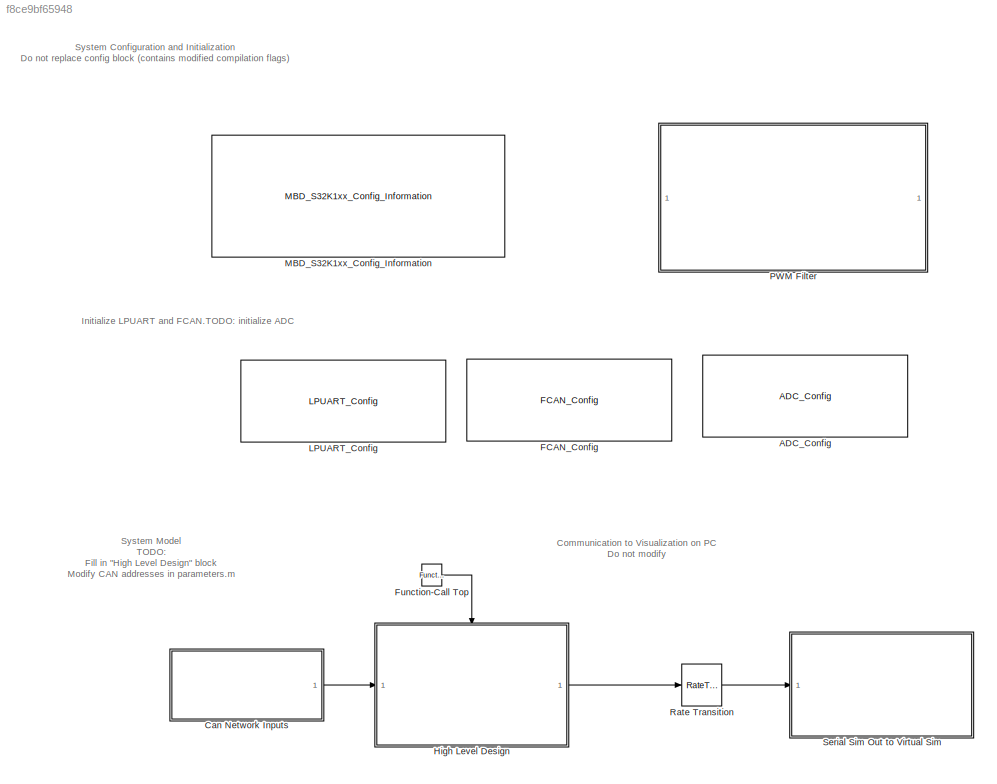
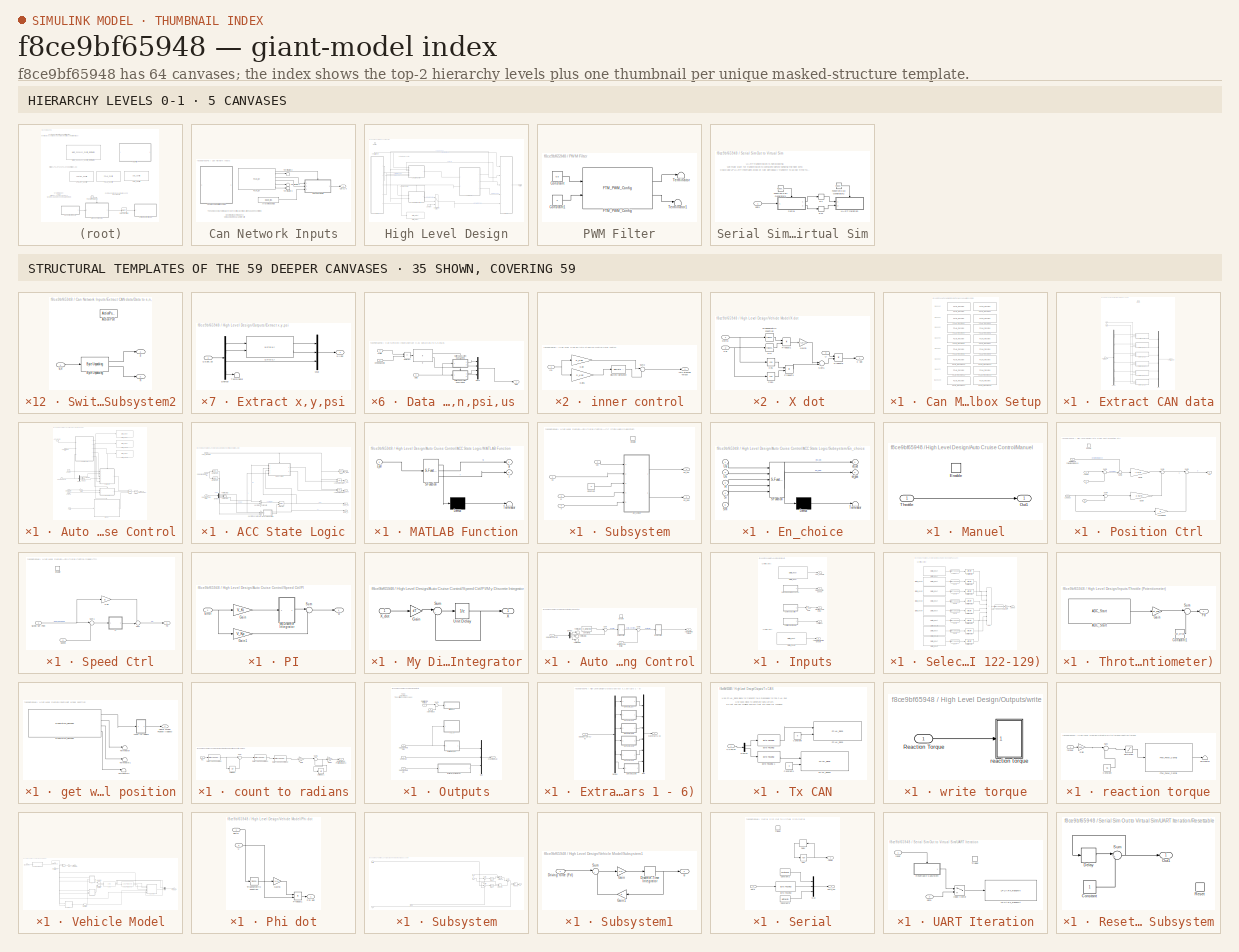
[diagram: thumbnail index - top-2 hierarchy levels (5 canvases) + 35 structural-template representatives of the remaining 59 canvases]
MODEL slx_f8ce9bf65948
KIND model
CONFIG AbsTol = auto
CONFIG EnableMultiTasking = on
CONFIG FixedStep = auto
CONFIG InitFcn = mbd_s32k_consistency_checks(bdroot(gcs));
CONFIG MaxStep = auto
CONFIG MinStep = auto
CONFIG RelTol = 1e-3
CONFIG SampleTimeConstraint = Unconstrained
CONFIG Solver = FixedStepDiscrete
CONFIG SolverName = FixedStepDiscrete
CONFIG StartTime = 0.0
CONFIG StopTime = 10.0
BLOCK [Reference] ADC_Config  REF=mbd_s32k1xx_ec_toolbox/Motor Control Blocks/ADC Blocks/ADC_Config
  Ports = []
  SourceBlock = mbd_s32k1xx_ec_toolbox/Motor Control Blocks/ADC Blocks/ADC_Config
  SourceType = adc_s32k_config_block
BLOCK [SubSystem] Can Network Inputs
  Ports = [0, 1]
  RequestExecContextInheritance = off
BLOCK [Constant] Can Network Inputs/Array of 6 base IDs
  Value = base_ids
BLOCK [SubSystem] Can Network Inputs/Can Message Mailbox Setup
  Ports = []
  RequestExecContextInheritance = off
BLOCK [Reference] Can Network Inputs/Can Message Mailbox Setup/FCAN_Receive  REF=mbd_s32k1xx_ec_toolbox/Communication Blocks/CAN Blocks/FCAN_Receive
  Ports = []
  SourceBlock = mbd_s32k1xx_ec_toolbox/Communication Blocks/CAN Blocks/FCAN_Receive
  SourceType = fcan_s32k_receive
BLOCK [Reference] Can Network Inputs/Can Message Mailbox Setup/FCAN_Receive1  REF=mbd_s32k1xx_ec_toolbox/Communication Blocks/CAN Blocks/FCAN_Receive
  Ports = []
  SourceBlock = mbd_s32k1xx_ec_toolbox/Communication Blocks/CAN Blocks/FCAN_Receive
  SourceType = fcan_s32k_receive
BLOCK [Reference] Can Network Inputs/Can Message Mailbox Setup/FCAN_Receive10  REF=mbd_s32k1xx_ec_toolbox/Communication Blocks/CAN Blocks/FCAN_Receive
  Ports = []
  SourceBlock = mbd_s32k1xx_ec_toolbox/Communication Blocks/CAN Blocks/FCAN_Receive
  SourceType = fcan_s32k_receive
BLOCK [Reference] Can Network Inputs/Can Message Mailbox Setup/FCAN_Receive11  REF=mbd_s32k1xx_ec_toolbox/Communication Blocks/CAN Blocks/FCAN_Receive
  Ports = []
  SourceBlock = mbd_s32k1xx_ec_toolbox/Communication Blocks/CAN Blocks/FCAN_Receive
  SourceType = fcan_s32k_receive
BLOCK [Reference] Can Network Inputs/Can Message Mailbox Setup/FCAN_Receive12  REF=mbd_s32k1xx_ec_toolbox/Communication Blocks/CAN Blocks/FCAN_Receive
  Ports = []
  SourceBlock = mbd_s32k1xx_ec_toolbox/Communication Blocks/CAN Blocks/FCAN_Receive
  SourceType = fcan_s32k_receive
BLOCK [Reference] Can Network Inputs/Can Message Mailbox Setup/FCAN_Receive13  REF=mbd_s32k1xx_ec_toolbox/Communication Blocks/CAN Blocks/FCAN_Receive
  Ports = []
  SourceBlock = mbd_s32k1xx_ec_toolbox/Communication Blocks/CAN Blocks/FCAN_Receive
  SourceType = fcan_s32k_receive
BLOCK [Reference] Can Network Inputs/Can Message Mailbox Setup/FCAN_Receive14  REF=mbd_s32k1xx_ec_toolbox/Communication Blocks/CAN Blocks/FCAN_Receive
  Ports = []
  SourceBlock = mbd_s32k1xx_ec_toolbox/Communication Blocks/CAN Blocks/FCAN_Receive
  SourceType = fcan_s32k_receive
BLOCK [Reference] Can Network Inputs/Can Message Mailbox Setup/FCAN_Receive15  REF=mbd_s32k1xx_ec_toolbox/Communication Blocks/CAN Blocks/FCAN_Receive
  Ports = []
  SourceBlock = mbd_s32k1xx_ec_toolbox/Communication Blocks/CAN Blocks/FCAN_Receive
  SourceType = fcan_s32k_receive
BLOCK [Reference] Can Network Inputs/Can Message Mailbox Setup/FCAN_Receive2  REF=mbd_s32k1xx_ec_toolbox/Communication Blocks/CAN Blocks/FCAN_Receive
  Ports = []
  SourceBlock = mbd_s32k1xx_ec_toolbox/Communication Blocks/CAN Blocks/FCAN_Receive
  SourceType = fcan_s32k_receive
BLOCK [Reference] Can Network Inputs/Can Message Mailbox Setup/FCAN_Receive3  REF=mbd_s32k1xx_ec_toolbox/Communication Blocks/CAN Blocks/FCAN_Receive
  Ports = []
  SourceBlock = mbd_s32k1xx_ec_toolbox/Communication Blocks/CAN Blocks/FCAN_Receive
  SourceType = fcan_s32k_receive
BLOCK [Reference] Can Network Inputs/Can Message Mailbox Setup/FCAN_Receive4  REF=mbd_s32k1xx_ec_toolbox/Communication Blocks/CAN Blocks/FCAN_Receive
  Ports = []
  SourceBlock = mbd_s32k1xx_ec_toolbox/Communication Blocks/CAN Blocks/FCAN_Receive
  SourceType = fcan_s32k_receive
BLOCK [Reference] Can Network Inputs/Can Message Mailbox Setup/FCAN_Receive5  REF=mbd_s32k1xx_ec_toolbox/Communication Blocks/CAN Blocks/FCAN_Receive
  Ports = []
  SourceBlock = mbd_s32k1xx_ec_toolbox/Communication Blocks/CAN Blocks/FCAN_Receive
  SourceType = fcan_s32k_receive
BLOCK [Reference] Can Network Inputs/Can Message Mailbox Setup/FCAN_Receive6  REF=mbd_s32k1xx_ec_toolbox/Communication Blocks/CAN Blocks/FCAN_Receive
  Ports = []
  SourceBlock = mbd_s32k1xx_ec_toolbox/Communication Blocks/CAN Blocks/FCAN_Receive
  SourceType = fcan_s32k_receive
BLOCK [Reference] Can Network Inputs/Can Message Mailbox Setup/FCAN_Receive7  REF=mbd_s32k1xx_ec_toolbox/Communication Blocks/CAN Blocks/FCAN_Receive
  Ports = []
  SourceBlock = mbd_s32k1xx_ec_toolbox/Communication Blocks/CAN Blocks/FCAN_Receive
  SourceType = fcan_s32k_receive
BLOCK [Reference] Can Network Inputs/Can Message Mailbox Setup/FCAN_Receive8  REF=mbd_s32k1xx_ec_toolbox/Communication Blocks/CAN Blocks/FCAN_Receive
  Ports = []
  SourceBlock = mbd_s32k1xx_ec_toolbox/Communication Blocks/CAN Blocks/FCAN_Receive
  SourceType = fcan_s32k_receive
BLOCK [Reference] Can Network Inputs/Can Message Mailbox Setup/FCAN_Receive9  REF=mbd_s32k1xx_ec_toolbox/Communication Blocks/CAN Blocks/FCAN_Receive
  Ports = []
  SourceBlock = mbd_s32k1xx_ec_toolbox/Communication Blocks/CAN Blocks/FCAN_Receive
  SourceType = fcan_s32k_receive
BLOCK [Outport] Can Network Inputs/Cars 1-6
  VectorParamsAs1DForOutWhenUnconnected = off
BLOCK [SubSystem] Can Network Inputs/Extract CAN data
  Ports = [3, 1, 0, 1]
  RequestExecContextInheritance = off
BLOCK [Inport] Can Network Inputs/Extract CAN data/CAN Base IDs (Cars 1-6)
  Port = 3
BLOCK [SubSystem] Can Network Inputs/Extract CAN data/Data to s,n,psi,us 
  Ports = [3, 1]
  RequestExecContextInheritance = off
BLOCK [Inport] Can Network Inputs/Extract CAN data/Data to s,n,psi,us /CAN ID
  Port = 2
BLOCK [Inport] Can Network Inputs/Extract CAN data/Data to s,n,psi,us /Data
  Port = 3
BLOCK [If] Can Network Inputs/Extract CAN data/Data to s,n,psi,us /If
  ElseIfExpressions = u1 == 6
  IfExpression = u1 == 5
  Ports = [1, 2]
  ShowElse = off
BLOCK [Mux] Can Network Inputs/Extract CAN data/Data to s,n,psi,us /Mux3
  DisplayOption = bar
  Ports = [4, 1]
BLOCK [Outport] Can Network Inputs/Extract CAN data/Data to s,n,psi,us /Out1
  VectorParamsAs1DForOutWhenUnconnected = off
BLOCK [Sum] Can Network Inputs/Extract CAN data/Data to s,n,psi,us /Subtract
  IconShape = rectangular
  Inputs = +-
  Ports = [2, 1]
BLOCK [SubSystem] Can Network Inputs/Extract CAN data/Data to s,n,psi,us /Switch Case Action Subsystem2
  Ports = [1, 2, 0, 0, 0, 0, 0, 1]
  RequestExecContextInheritance = off
  TreatAsAtomicUnit = on
BLOCK [ActionPort] Can Network Inputs/Extract CAN data/Data to s,n,psi,us /Switch Case Action Subsystem2/Action Port
  ActionPortLabel = if(u1 == 5)
BLOCK [Reference] Can Network Inputs/Extract CAN data/Data to s,n,psi,us /Switch Case Action Subsystem2/Byte Unpacking   REF=xpcutilitieslib/Byte Unpacking 
  Ports = [1, 2]
  SourceBlock = xpcutilitieslib/Byte Unpacking
  SourceProductBaseCode = XP
  SourceType = xpcbytepacking
BLOCK [Outport] Can Network Inputs/Extract CAN data/Data to s,n,psi,us /Switch Case Action Subsystem2/n
  Port = 2
  VectorParamsAs1DForOutWhenUnconnected = off
BLOCK [Outport] Can Network Inputs/Extract CAN data/Data to s,n,psi,us /Switch Case Action Subsystem2/s
  VectorParamsAs1DForOutWhenUnconnected = off
BLOCK [Inport] Can Network Inputs/Extract CAN data/Data to s,n,psi,us /Switch Case Action Subsystem2/s,n
BLOCK [SubSystem] Can Network Inputs/Extract CAN data/Data to s,n,psi,us /Switch Case Action Subsystem3
  Ports = [1, 2, 0, 0, 0, 0, 0, 1]
  RequestExecContextInheritance = off
  TreatAsAtomicUnit = on
BLOCK [ActionPort] Can Network Inputs/Extract CAN data/Data to s,n,psi,us /Switch Case Action Subsystem3/Action Port
  ActionPortLabel = elseif(u1 == 6)
BLOCK [Reference] Can Network Inputs/Extract CAN data/Data to s,n,psi,us /Switch Case Action Subsystem3/Byte Unpacking   REF=xpcutilitieslib/Byte Unpacking 
  Ports = [1, 2]
  SourceBlock = xpcutilitieslib/Byte Unpacking
  SourceProductBaseCode = XP
  SourceType = xpcbytepacking
BLOCK [Outport] Can Network Inputs/Extract CAN data/Data to s,n,psi,us /Switch Case Action Subsystem3/psi
  VectorParamsAs1DForOutWhenUnconnected = off
BLOCK [Inport] Can Network Inputs/Extract CAN data/Data to s,n,psi,us /Switch Case Action Subsystem3/psi,us
BLOCK [Outport] Can Network Inputs/Extract CAN data/Data to s,n,psi,us /Switch Case Action Subsystem3/us
  Port = 2
  VectorParamsAs1DForOutWhenUnconnected = off
BLOCK [Inport] Can Network Inputs/Extract CAN data/Data to s,n,psi,us /Vehicle Base ID
BLOCK [SubSystem] Can Network Inputs/Extract CAN data/Data to s,n,psi,us 1
  Ports = [3, 1]
  RequestExecContextInheritance = off
BLOCK [Inport] Can Network Inputs/Extract CAN data/Data to s,n,psi,us 1/CAN ID
  Port = 2
BLOCK [Inport] Can Network Inputs/Extract CAN data/Data to s,n,psi,us 1/Data
  Port = 3
BLOCK [If] Can Network Inputs/Extract CAN data/Data to s,n,psi,us 1/If
  ElseIfExpressions = u1 == 6
  IfExpression = u1 == 5
  Ports = [1, 2]
  ShowElse = off
BLOCK [Mux] Can Network Inputs/Extract CAN data/Data to s,n,psi,us 1/Mux3
  DisplayOption = bar
  Ports = [4, 1]
BLOCK [Outport] Can Network Inputs/Extract CAN data/Data to s,n,psi,us 1/Out1
  VectorParamsAs1DForOutWhenUnconnected = off
BLOCK [Sum] Can Network Inputs/Extract CAN data/Data to s,n,psi,us 1/Subtract
  IconShape = rectangular
  Inputs = +-
  Ports = [2, 1]
BLOCK [SubSystem] Can Network Inputs/Extract CAN data/Data to s,n,psi,us 1/Switch Case Action Subsystem2
  Ports = [1, 2, 0, 0, 0, 0, 0, 1]
  RequestExecContextInheritance = off
  TreatAsAtomicUnit = on
BLOCK [ActionPort] Can Network Inputs/Extract CAN data/Data to s,n,psi,us 1/Switch Case Action Subsystem2/Action Port
  ActionPortLabel = if(u1 == 5)
BLOCK [Reference] Can Network Inputs/Extract CAN data/Data to s,n,psi,us 1/Switch Case Action Subsystem2/Byte Unpacking   REF=xpcutilitieslib/Byte Unpacking 
  Ports = [1, 2]
  SourceBlock = xpcutilitieslib/Byte Unpacking
  SourceProductBaseCode = XP
  SourceType = xpcbytepacking
BLOCK [Outport] Can Network Inputs/Extract CAN data/Data to s,n,psi,us 1/Switch Case Action Subsystem2/n
  Port = 2
  VectorParamsAs1DForOutWhenUnconnected = off
BLOCK [Outport] Can Network Inputs/Extract CAN data/Data to s,n,psi,us 1/Switch Case Action Subsystem2/s
  VectorParamsAs1DForOutWhenUnconnected = off
BLOCK [Inport] Can Network Inputs/Extract CAN data/Data to s,n,psi,us 1/Switch Case Action Subsystem2/s,n
BLOCK [SubSystem] Can Network Inputs/Extract CAN data/Data to s,n,psi,us 1/Switch Case Action Subsystem3
  Ports = [1, 2, 0, 0, 0, 0, 0, 1]
  RequestExecContextInheritance = off
  TreatAsAtomicUnit = on
BLOCK [ActionPort] Can Network Inputs/Extract CAN data/Data to s,n,psi,us 1/Switch Case Action Subsystem3/Action Port
  ActionPortLabel = elseif(u1 == 6)
BLOCK [Reference] Can Network Inputs/Extract CAN data/Data to s,n,psi,us 1/Switch Case Action Subsystem3/Byte Unpacking   REF=xpcutilitieslib/Byte Unpacking 
  Ports = [1, 2]
  SourceBlock = xpcutilitieslib/Byte Unpacking
  SourceProductBaseCode = XP
  SourceType = xpcbytepacking
BLOCK [Outport] Can Network Inputs/Extract CAN data/Data to s,n,psi,us 1/Switch Case Action Subsystem3/psi
  VectorParamsAs1DForOutWhenUnconnected = off
BLOCK [Inport] Can Network Inputs/Extract CAN data/Data to s,n,psi,us 1/Switch Case Action Subsystem3/psi,us
BLOCK [Outport] Can Network Inputs/Extract CAN data/Data to s,n,psi,us 1/Switch Case Action Subsystem3/us
  Port = 2
  VectorParamsAs1DForOutWhenUnconnected = off
BLOCK [Inport] Can Network Inputs/Extract CAN data/Data to s,n,psi,us 1/Vehicle Base ID
BLOCK [SubSystem] Can Network Inputs/Extract CAN data/Data to s,n,psi,us 2
  Ports = [3, 1]
  RequestExecContextInheritance = off
BLOCK [Inport] Can Network Inputs/Extract CAN data/Data to s,n,psi,us 2/CAN ID
  Port = 2
BLOCK [Inport] Can Network Inputs/Extract CAN data/Data to s,n,psi,us 2/Data
  Port = 3
BLOCK [If] Can Network Inputs/Extract CAN data/Data to s,n,psi,us 2/If
  ElseIfExpressions = u1 == 6
  IfExpression = u1 == 5
  Ports = [1, 2]
  ShowElse = off
BLOCK [Mux] Can Network Inputs/Extract CAN data/Data to s,n,psi,us 2/Mux3
  DisplayOption = bar
  Ports = [4, 1]
BLOCK [Outport] Can Network Inputs/Extract CAN data/Data to s,n,psi,us 2/Out1
  VectorParamsAs1DForOutWhenUnconnected = off
BLOCK [Sum] Can Network Inputs/Extract CAN data/Data to s,n,psi,us 2/Subtract
  IconShape = rectangular
  Inputs = +-
  Ports = [2, 1]
BLOCK [SubSystem] Can Network Inputs/Extract CAN data/Data to s,n,psi,us 2/Switch Case Action Subsystem2
  Ports = [1, 2, 0, 0, 0, 0, 0, 1]
  RequestExecContextInheritance = off
  TreatAsAtomicUnit = on
BLOCK [ActionPort] Can Network Inputs/Extract CAN data/Data to s,n,psi,us 2/Switch Case Action Subsystem2/Action Port
  ActionPortLabel = if(u1 == 5)
BLOCK [Reference] Can Network Inputs/Extract CAN data/Data to s,n,psi,us 2/Switch Case Action Subsystem2/Byte Unpacking   REF=xpcutilitieslib/Byte Unpacking 
  Ports = [1, 2]
  SourceBlock = xpcutilitieslib/Byte Unpacking
  SourceProductBaseCode = XP
  SourceType = xpcbytepacking
BLOCK [Outport] Can Network Inputs/Extract CAN data/Data to s,n,psi,us 2/Switch Case Action Subsystem2/n
  Port = 2
  VectorParamsAs1DForOutWhenUnconnected = off
BLOCK [Outport] Can Network Inputs/Extract CAN data/Data to s,n,psi,us 2/Switch Case Action Subsystem2/s
  VectorParamsAs1DForOutWhenUnconnected = off
BLOCK [Inport] Can Network Inputs/Extract CAN data/Data to s,n,psi,us 2/Switch Case Action Subsystem2/s,n
BLOCK [SubSystem] Can Network Inputs/Extract CAN data/Data to s,n,psi,us 2/Switch Case Action Subsystem3
  Ports = [1, 2, 0, 0, 0, 0, 0, 1]
  RequestExecContextInheritance = off
  TreatAsAtomicUnit = on
BLOCK [ActionPort] Can Network Inputs/Extract CAN data/Data to s,n,psi,us 2/Switch Case Action Subsystem3/Action Port
  ActionPortLabel = elseif(u1 == 6)
BLOCK [Reference] Can Network Inputs/Extract CAN data/Data to s,n,psi,us 2/Switch Case Action Subsystem3/Byte Unpacking   REF=xpcutilitieslib/Byte Unpacking 
  Ports = [1, 2]
  SourceBlock = xpcutilitieslib/Byte Unpacking
  SourceProductBaseCode = XP
  SourceType = xpcbytepacking
BLOCK [Outport] Can Network Inputs/Extract CAN data/Data to s,n,psi,us 2/Switch Case Action Subsystem3/psi
  VectorParamsAs1DForOutWhenUnconnected = off
BLOCK [Inport] Can Network Inputs/Extract CAN data/Data to s,n,psi,us 2/Switch Case Action Subsystem3/psi,us
BLOCK [Outport] Can Network Inputs/Extract CAN data/Data to s,n,psi,us 2/Switch Case Action Subsystem3/us
  Port = 2
  VectorParamsAs1DForOutWhenUnconnected = off
BLOCK [Inport] Can Network Inputs/Extract CAN data/Data to s,n,psi,us 2/Vehicle Base ID
BLOCK [SubSystem] Can Network Inputs/Extract CAN data/Data to s,n,psi,us 3
  Ports = [3, 1]
  RequestExecContextInheritance = off
BLOCK [Inport] Can Network Inputs/Extract CAN data/Data to s,n,psi,us 3/CAN ID
  Port = 2
BLOCK [Inport] Can Network Inputs/Extract CAN data/Data to s,n,psi,us 3/Data
  Port = 3
BLOCK [If] Can Network Inputs/Extract CAN data/Data to s,n,psi,us 3/If
  ElseIfExpressions = u1 == 6
  IfExpression = u1 == 5
  Ports = [1, 2]
  ShowElse = off
BLOCK [Mux] Can Network Inputs/Extract CAN data/Data to s,n,psi,us 3/Mux3
  DisplayOption = bar
  Ports = [4, 1]
BLOCK [Outport] Can Network Inputs/Extract CAN data/Data to s,n,psi,us 3/Out1
  VectorParamsAs1DForOutWhenUnconnected = off
BLOCK [Sum] Can Network Inputs/Extract CAN data/Data to s,n,psi,us 3/Subtract
  IconShape = rectangular
  Inputs = +-
  Ports = [2, 1]
BLOCK [SubSystem] Can Network Inputs/Extract CAN data/Data to s,n,psi,us 3/Switch Case Action Subsystem2
  Ports = [1, 2, 0, 0, 0, 0, 0, 1]
  RequestExecContextInheritance = off
  TreatAsAtomicUnit = on
BLOCK [ActionPort] Can Network Inputs/Extract CAN data/Data to s,n,psi,us 3/Switch Case Action Subsystem2/Action Port
  ActionPortLabel = if(u1 == 5)
BLOCK [Reference] Can Network Inputs/Extract CAN data/Data to s,n,psi,us 3/Switch Case Action Subsystem2/Byte Unpacking   REF=xpcutilitieslib/Byte Unpacking 
  Ports = [1, 2]
  SourceBlock = xpcutilitieslib/Byte Unpacking
  SourceProductBaseCode = XP
  SourceType = xpcbytepacking
BLOCK [Outport] Can Network Inputs/Extract CAN data/Data to s,n,psi,us 3/Switch Case Action Subsystem2/n
  Port = 2
  VectorParamsAs1DForOutWhenUnconnected = off
BLOCK [Outport] Can Network Inputs/Extract CAN data/Data to s,n,psi,us 3/Switch Case Action Subsystem2/s
  VectorParamsAs1DForOutWhenUnconnected = off
BLOCK [Inport] Can Network Inputs/Extract CAN data/Data to s,n,psi,us 3/Switch Case Action Subsystem2/s,n
BLOCK [SubSystem] Can Network Inputs/Extract CAN data/Data to s,n,psi,us 3/Switch Case Action Subsystem3
  Ports = [1, 2, 0, 0, 0, 0, 0, 1]
  RequestExecContextInheritance = off
  TreatAsAtomicUnit = on
BLOCK [ActionPort] Can Network Inputs/Extract CAN data/Data to s,n,psi,us 3/Switch Case Action Subsystem3/Action Port
  ActionPortLabel = elseif(u1 == 6)
BLOCK [Reference] Can Network Inputs/Extract CAN data/Data to s,n,psi,us 3/Switch Case Action Subsystem3/Byte Unpacking   REF=xpcutilitieslib/Byte Unpacking 
  Ports = [1, 2]
  SourceBlock = xpcutilitieslib/Byte Unpacking
  SourceProductBaseCode = XP
  SourceType = xpcbytepacking
BLOCK [Outport] Can Network Inputs/Extract CAN data/Data to s,n,psi,us 3/Switch Case Action Subsystem3/psi
  VectorParamsAs1DForOutWhenUnconnected = off
BLOCK [Inport] Can Network Inputs/Extract CAN data/Data to s,n,psi,us 3/Switch Case Action Subsystem3/psi,us
BLOCK [Outport] Can Network Inputs/Extract CAN data/Data to s,n,psi,us 3/Switch Case Action Subsystem3/us
  Port = 2
  VectorParamsAs1DForOutWhenUnconnected = off
BLOCK [Inport] Can Network Inputs/Extract CAN data/Data to s,n,psi,us 3/Vehicle Base ID
BLOCK [SubSystem] Can Network Inputs/Extract CAN data/Data to s,n,psi,us 4
  Ports = [3, 1]
  RequestExecContextInheritance = off
BLOCK [Inport] Can Network Inputs/Extract CAN data/Data to s,n,psi,us 4/CAN ID
  Port = 2
BLOCK [Inport] Can Network Inputs/Extract CAN data/Data to s,n,psi,us 4/Data
  Port = 3
BLOCK [If] Can Network Inputs/Extract CAN data/Data to s,n,psi,us 4/If
  ElseIfExpressions = u1 == 6
  IfExpression = u1 == 5
  Ports = [1, 2]
  ShowElse = off
BLOCK [Mux] Can Network Inputs/Extract CAN data/Data to s,n,psi,us 4/Mux3
  DisplayOption = bar
  Ports = [4, 1]
BLOCK [Outport] Can Network Inputs/Extract CAN data/Data to s,n,psi,us 4/Out1
  VectorParamsAs1DForOutWhenUnconnected = off
BLOCK [Sum] Can Network Inputs/Extract CAN data/Data to s,n,psi,us 4/Subtract
  IconShape = rectangular
  Inputs = +-
  Ports = [2, 1]
BLOCK [SubSystem] Can Network Inputs/Extract CAN data/Data to s,n,psi,us 4/Switch Case Action Subsystem2
  Ports = [1, 2, 0, 0, 0, 0, 0, 1]
  RequestExecContextInheritance = off
  TreatAsAtomicUnit = on
BLOCK [ActionPort] Can Network Inputs/Extract CAN data/Data to s,n,psi,us 4/Switch Case Action Subsystem2/Action Port
  ActionPortLabel = if(u1 == 5)
BLOCK [Reference] Can Network Inputs/Extract CAN data/Data to s,n,psi,us 4/Switch Case Action Subsystem2/Byte Unpacking   REF=xpcutilitieslib/Byte Unpacking 
  Ports = [1, 2]
  SourceBlock = xpcutilitieslib/Byte Unpacking
  SourceProductBaseCode = XP
  SourceType = xpcbytepacking
BLOCK [Outport] Can Network Inputs/Extract CAN data/Data to s,n,psi,us 4/Switch Case Action Subsystem2/n
  Port = 2
  VectorParamsAs1DForOutWhenUnconnected = off
BLOCK [Outport] Can Network Inputs/Extract CAN data/Data to s,n,psi,us 4/Switch Case Action Subsystem2/s
  VectorParamsAs1DForOutWhenUnconnected = off
BLOCK [Inport] Can Network Inputs/Extract CAN data/Data to s,n,psi,us 4/Switch Case Action Subsystem2/s,n
BLOCK [SubSystem] Can Network Inputs/Extract CAN data/Data to s,n,psi,us 4/Switch Case Action Subsystem3
  Ports = [1, 2, 0, 0, 0, 0, 0, 1]
  RequestExecContextInheritance = off
  TreatAsAtomicUnit = on
BLOCK [ActionPort] Can Network Inputs/Extract CAN data/Data to s,n,psi,us 4/Switch Case Action Subsystem3/Action Port
  ActionPortLabel = elseif(u1 == 6)
BLOCK [Reference] Can Network Inputs/Extract CAN data/Data to s,n,psi,us 4/Switch Case Action Subsystem3/Byte Unpacking   REF=xpcutilitieslib/Byte Unpacking 
  Ports = [1, 2]
  SourceBlock = xpcutilitieslib/Byte Unpacking
  SourceProductBaseCode = XP
  SourceType = xpcbytepacking
BLOCK [Outport] Can Network Inputs/Extract CAN data/Data to s,n,psi,us 4/Switch Case Action Subsystem3/psi
  VectorParamsAs1DForOutWhenUnconnected = off
BLOCK [Inport] Can Network Inputs/Extract CAN data/Data to s,n,psi,us 4/Switch Case Action Subsystem3/psi,us
BLOCK [Outport] Can Network Inputs/Extract CAN data/Data to s,n,psi,us 4/Switch Case Action Subsystem3/us
  Port = 2
  VectorParamsAs1DForOutWhenUnconnected = off
BLOCK [Inport] Can Network Inputs/Extract CAN data/Data to s,n,psi,us 4/Vehicle Base ID
BLOCK [SubSystem] Can Network Inputs/Extract CAN data/Data to s,n,psi,us 5
  Ports = [3, 1]
  RequestExecContextInheritance = off
BLOCK [Inport] Can Network Inputs/Extract CAN data/Data to s,n,psi,us 5/CAN ID
  Port = 2
BLOCK [Inport] Can Network Inputs/Extract CAN data/Data to s,n,psi,us 5/Data
  Port = 3
BLOCK [If] Can Network Inputs/Extract CAN data/Data to s,n,psi,us 5/If
  ElseIfExpressions = u1 == 6
  IfExpression = u1 == 5
  Ports = [1, 2]
  ShowElse = off
BLOCK [Mux] Can Network Inputs/Extract CAN data/Data to s,n,psi,us 5/Mux3
  DisplayOption = bar
  Ports = [4, 1]
BLOCK [Outport] Can Network Inputs/Extract CAN data/Data to s,n,psi,us 5/Out1
  VectorParamsAs1DForOutWhenUnconnected = off
BLOCK [Sum] Can Network Inputs/Extract CAN data/Data to s,n,psi,us 5/Subtract
  IconShape = rectangular
  Inputs = +-
  Ports = [2, 1]
BLOCK [SubSystem] Can Network Inputs/Extract CAN data/Data to s,n,psi,us 5/Switch Case Action Subsystem2
  Ports = [1, 2, 0, 0, 0, 0, 0, 1]
  RequestExecContextInheritance = off
  TreatAsAtomicUnit = on
BLOCK [ActionPort] Can Network Inputs/Extract CAN data/Data to s,n,psi,us 5/Switch Case Action Subsystem2/Action Port
  ActionPortLabel = if(u1 == 5)
BLOCK [Reference] Can Network Inputs/Extract CAN data/Data to s,n,psi,us 5/Switch Case Action Subsystem2/Byte Unpacking   REF=xpcutilitieslib/Byte Unpacking 
  Ports = [1, 2]
  SourceBlock = xpcutilitieslib/Byte Unpacking
  SourceProductBaseCode = XP
  SourceType = xpcbytepacking
BLOCK [Outport] Can Network Inputs/Extract CAN data/Data to s,n,psi,us 5/Switch Case Action Subsystem2/n
  Port = 2
  VectorParamsAs1DForOutWhenUnconnected = off
BLOCK [Outport] Can Network Inputs/Extract CAN data/Data to s,n,psi,us 5/Switch Case Action Subsystem2/s
  VectorParamsAs1DForOutWhenUnconnected = off
BLOCK [Inport] Can Network Inputs/Extract CAN data/Data to s,n,psi,us 5/Switch Case Action Subsystem2/s,n
BLOCK [SubSystem] Can Network Inputs/Extract CAN data/Data to s,n,psi,us 5/Switch Case Action Subsystem3
  Ports = [1, 2, 0, 0, 0, 0, 0, 1]
  RequestExecContextInheritance = off
  TreatAsAtomicUnit = on
BLOCK [ActionPort] Can Network Inputs/Extract CAN data/Data to s,n,psi,us 5/Switch Case Action Subsystem3/Action Port
  ActionPortLabel = elseif(u1 == 6)
BLOCK [Reference] Can Network Inputs/Extract CAN data/Data to s,n,psi,us 5/Switch Case Action Subsystem3/Byte Unpacking   REF=xpcutilitieslib/Byte Unpacking 
  Ports = [1, 2]
  SourceBlock = xpcutilitieslib/Byte Unpacking
  SourceProductBaseCode = XP
  SourceType = xpcbytepacking
BLOCK [Outport] Can Network Inputs/Extract CAN data/Data to s,n,psi,us 5/Switch Case Action Subsystem3/psi
  VectorParamsAs1DForOutWhenUnconnected = off
BLOCK [Inport] Can Network Inputs/Extract CAN data/Data to s,n,psi,us 5/Switch Case Action Subsystem3/psi,us
BLOCK [Outport] Can Network Inputs/Extract CAN data/Data to s,n,psi,us 5/Switch Case Action Subsystem3/us
  Port = 2
  VectorParamsAs1DForOutWhenUnconnected = off
BLOCK [Inport] Can Network Inputs/Extract CAN data/Data to s,n,psi,us 5/Vehicle Base ID
BLOCK [Demux] Can Network Inputs/Extract CAN data/Demux
  Outputs = 6
  Ports = [1, 6]
BLOCK [Inport] Can Network Inputs/Extract CAN data/ID
BLOCK [Mux] Can Network Inputs/Extract CAN data/Mux
  DisplayOption = bar
  Inputs = 6
  Ports = [6, 1]
BLOCK [Inport] Can Network Inputs/Extract CAN data/data
  Port = 2
BLOCK [TriggerPort] Can Network Inputs/Extract CAN data/function
  Ports = []
  StatesWhenEnabling = held
  TriggerType = function-call
  VariantControl = Variant
BLOCK [Outport] Can Network Inputs/Extract CAN data/s, n, psi, us (Cars 1-6)
  VectorParamsAs1DForOutWhenUnconnected = off
BLOCK [Reference] Can Network Inputs/FCAN_Isr  REF=mbd_s32k1xx_ec_toolbox/Communication Blocks/CAN Blocks/FCAN_Isr
  Ports = [0, 6]
  SourceBlock = mbd_s32k1xx_ec_toolbox/Communication Blocks/CAN Blocks/FCAN_Isr
  SourceType = fcan_s32k_isr
BLOCK [Terminator] Can Network Inputs/Terminator1
BLOCK [Terminator] Can Network Inputs/Terminator2
BLOCK [Terminator] Can Network Inputs/Terminator3
BLOCK [Reference] FCAN_Config  REF=mbd_s32k1xx_ec_toolbox/Communication Blocks/CAN Blocks/FCAN_Config
  Ports = []
  Priority = 2
  SourceBlock = mbd_s32k1xx_ec_toolbox/Communication Blocks/CAN Blocks/FCAN_Config
  SourceType = fcan_s32k_config
BLOCK [Reference] Function-Call Top  REF=simulink/Ports &
Subsystems/Function-Call
Generator
  Ports = [0, 1]
  SourceBlock = simulink/Ports &\nSubsystems/Function-Call\nGenerator
  SourceProductBaseCode = SL
  SourceType = Function-Call Generator
BLOCK [SubSystem] High Level Design
  Ports = [1, 1, 0, 1]
  RequestExecContextInheritance = off
  TreatAsAtomicUnit = on
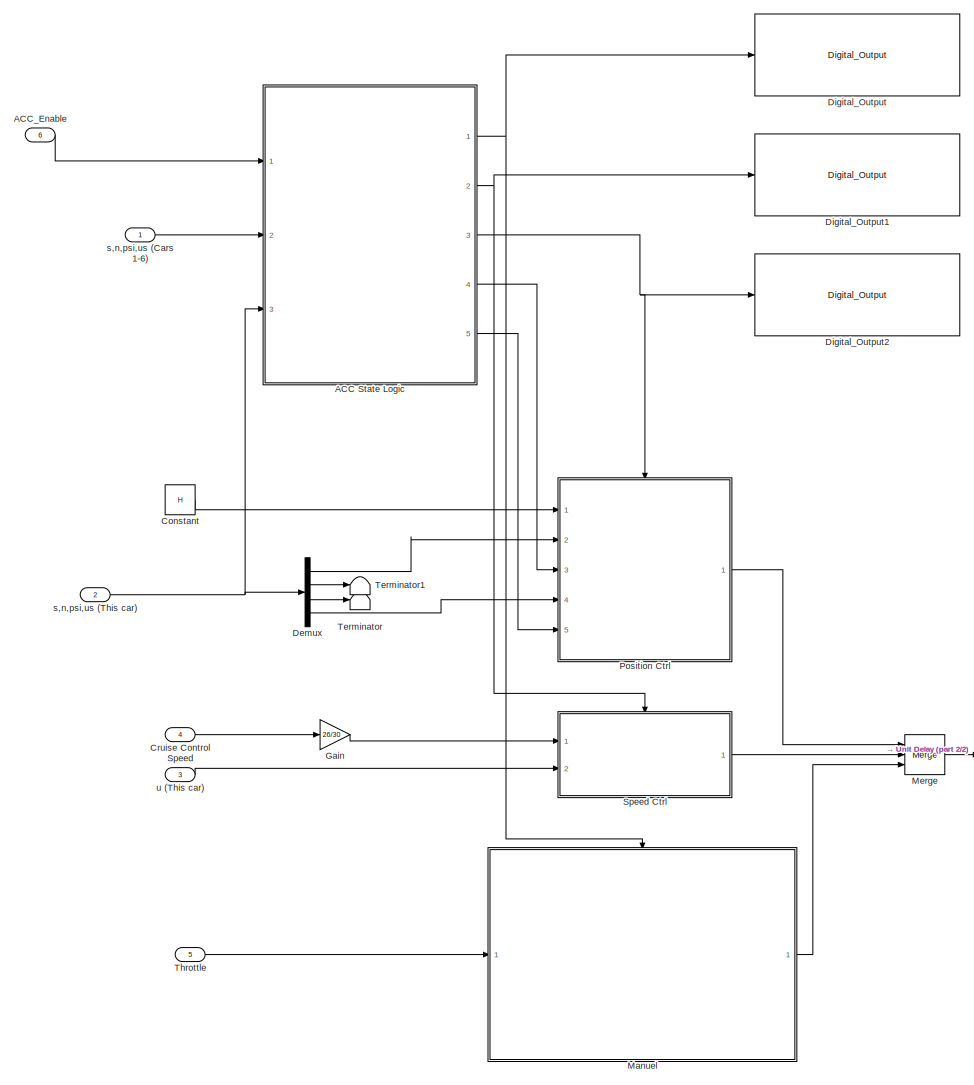
[diagram: High Level Design/Auto Cruise Control - part 1/2, most of the canvas]
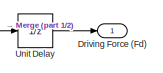
[diagram: High Level Design/Auto Cruise Control - part 2/2, bottom right region]
BLOCK [SubSystem] High Level Design/Auto Cruise Control
  Ports = [6, 1]
  RequestExecContextInheritance = off
BLOCK [SubSystem] High Level Design/Auto Cruise Control/ACC State Logic
  Ports = [3, 5]
  RequestExecContextInheritance = off
BLOCK [Inport] High Level Design/Auto Cruise Control/ACC State Logic/ACC_Enable
BLOCK [Demux] High Level Design/Auto Cruise Control/ACC State Logic/Demux
  Ports = [1, 4]
BLOCK [Logic] High Level Design/Auto Cruise Control/ACC State Logic/Logical Operator
  AllPortsSameDT = off
  OutDataTypeStr = boolean
  Ports = [2, 1]
BLOCK [Logic] High Level Design/Auto Cruise Control/ACC State Logic/Logical Operator1
  AllPortsSameDT = off
  OutDataTypeStr = boolean
  Ports = [2, 1]
BLOCK [SubSystem] High Level Design/Auto Cruise Control/ACC State Logic/MATLAB Function
  ErrorFcn = Stateflow.Translate.translate
  PermitHierarchicalResolution = ExplicitOnly
  Ports = [1, 2]
  RequestExecContextInheritance = off
  SFBlockType = MATLAB Function
  TreatAsAtomicUnit = on
BLOCK [Demux] High Level Design/Auto Cruise Control/ACC State Logic/MATLAB Function/ Demux 
  Outputs = 1
  Ports = [1, 1]
BLOCK [S-Function] High Level Design/Auto Cruise Control/ACC State Logic/MATLAB Function/ SFunction 
  EnableBusSupport = on
  FunctionName = sf_sfun
  PortCounts = [1 3]
  Ports = [1, 3]
  SFcnIsStateOwnerBlock = off
  SFunctionDeploymentMode = off
  Tag = Stateflow S-Function 1
BLOCK [Terminator] High Level Design/Auto Cruise Control/ACC State Logic/MATLAB Function/ Terminator 
BLOCK [Outport] High Level Design/Auto Cruise Control/ACC State Logic/MATLAB Function/i
  Port = 2
BLOCK [Inport] High Level Design/Auto Cruise Control/ACC State Logic/MATLAB Function/s_all
BLOCK [Outport] High Level Design/Auto Cruise Control/ACC State Logic/MATLAB Function/si
BLOCK [Logic] High Level Design/Auto Cruise Control/ACC State Logic/NOT
  AllPortsSameDT = off
  IconShape = distinctive
  Operator = NOT
  OutDataTypeStr = boolean
  Ports = [1, 1]
BLOCK [Selector] High Level Design/Auto Cruise Control/ACC State Logic/Selector
  IndexOptions = Index vector (port)
  Indices = [1 3]
  InputPortWidth = 7
  OutputSizes = 1
  Ports = [2, 1]
BLOCK [SubSystem] High Level Design/Auto Cruise Control/ACC State Logic/Subsystem
  Ports = [4, 2, 1]
  RequestExecContextInheritance = off
BLOCK [Constant] High Level Design/Auto Cruise Control/ACC State Logic/Subsystem/Constant
  Value = H
BLOCK [SubSystem] High Level Design/Auto Cruise Control/ACC State Logic/Subsystem/En_choice
  ErrorFcn = Stateflow.Translate.translate
  PermitHierarchicalResolution = ExplicitOnly
  Ports = [5, 2]
  RequestExecContextInheritance = off
  SFBlockType = Chart
  TreatAsAtomicUnit = on
BLOCK [Demux] High Level Design/Auto Cruise Control/ACC State Logic/Subsystem/En_choice/ Demux 
  Outputs = 1
  Ports = [1, 1]
BLOCK [S-Function] High Level Design/Auto Cruise Control/ACC State Logic/Subsystem/En_choice/ SFunction 
  EnableBusSupport = on
  FunctionName = sf_sfun
  PortCounts = [5 3]
  Ports = [5, 3]
  SFcnIsStateOwnerBlock = off
  SFunctionDeploymentMode = off
  Tag = Stateflow S-Function 3
BLOCK [Terminator] High Level Design/Auto Cruise Control/ACC State Logic/Subsystem/En_choice/ Terminator 
BLOCK [Inport] High Level Design/Auto Cruise Control/ACC State Logic/Subsystem/En_choice/H
  Port = 3
BLOCK [Inport] High Level Design/Auto Cruise Control/ACC State Logic/Subsystem/En_choice/Si
  Port = 4
BLOCK [Inport] High Level Design/Auto Cruise Control/ACC State Logic/Subsystem/En_choice/Sm
  Port = 5
BLOCK [Inport] High Level Design/Auto Cruise Control/ACC State Logic/Subsystem/En_choice/Us
  Port = 2
BLOCK [Inport] High Level Design/Auto Cruise Control/ACC State Logic/Subsystem/En_choice/Usi
BLOCK [Outport] High Level Design/Auto Cruise Control/ACC State Logic/Subsystem/En_choice/en_pos
  Port = 2
BLOCK [Outport] High Level Design/Auto Cruise Control/ACC State Logic/Subsystem/En_choice/en_vel
BLOCK [EnablePort] High Level Design/Auto Cruise Control/ACC State Logic/Subsystem/Enable
  Ports = []
BLOCK [Outport] High Level Design/Auto Cruise Control/ACC State Logic/Subsystem/en_pos
  Port = 2
BLOCK [Outport] High Level Design/Auto Cruise Control/ACC State Logic/Subsystem/en_vel
BLOCK [Inport] High Level Design/Auto Cruise Control/ACC State Logic/Subsystem/s
  Port = 4
BLOCK [Inport] High Level Design/Auto Cruise Control/ACC State Logic/Subsystem/si
  Port = 3
BLOCK [Inport] High Level Design/Auto Cruise Control/ACC State Logic/Subsystem/us
BLOCK [Inport] High Level Design/Auto Cruise Control/ACC State Logic/Subsystem/usi
  Port = 2
BLOCK [Terminator] High Level Design/Auto Cruise Control/ACC State Logic/Terminator2
BLOCK [Terminator] High Level Design/Auto Cruise Control/ACC State Logic/Terminator3
BLOCK [Concatenate] High Level Design/Auto Cruise Control/ACC State Logic/Vector Concatenate
  Ports = [2, 1]
BLOCK [Concatenate] High Level Design/Auto Cruise Control/ACC State Logic/Vector Concatenate1
  Ports = [2, 1]
BLOCK [Outport] High Level Design/Auto Cruise Control/ACC State Logic/en_man
BLOCK [Outport] High Level Design/Auto Cruise Control/ACC State Logic/en_pos
  Port = 3
BLOCK [Outport] High Level Design/Auto Cruise Control/ACC State Logic/en_vel
  Port = 2
BLOCK [Outport] High Level Design/Auto Cruise Control/ACC State Logic/lead_s
  Port = 4
BLOCK [Outport] High Level Design/Auto Cruise Control/ACC State Logic/lead_us
  Port = 5
BLOCK [Selector] High Level Design/Auto Cruise Control/ACC State Logic/s (cars 1-6)
  IndexOptions = Index vector (dialog)
  Indices = [1 5 9 13 17 21]
  InputPortWidth = 24
  OutputSizes = 1
  Ports = [1, 1]
BLOCK [Inport] High Level Design/Auto Cruise Control/ACC State Logic/s,n,psi,us (Cars 1 - 6)
  Port = 2
BLOCK [Inport] High Level Design/Auto Cruise Control/ACC State Logic/s,n,psi,us (This Car)
  Port = 3
BLOCK [Selector] High Level Design/Auto Cruise Control/ACC State Logic/u (cars 1-6)
  IndexOptions = Index vector (dialog)
  Indices = [4, 8, 12, 16, 20, 24]
  InputPortWidth = 24
  OutputSizes = 1
  Ports = [1, 1]
BLOCK [Inport] High Level Design/Auto Cruise Control/ACC_Enable
  Port = 6
BLOCK [Constant] High Level Design/Auto Cruise Control/Constant
  OutDataTypeStr = single
  Value = H
BLOCK [Inport] High Level Design/Auto Cruise Control/Cruise Control Speed
  Port = 4
BLOCK [Demux] High Level Design/Auto Cruise Control/Demux
  Ports = [1, 4]
BLOCK [Reference] High Level Design/Auto Cruise Control/Digital_Output  REF=mbd_s32k1xx_ec_toolbox/GPIO Blocks/Digital_Output
  Ports = [1]
  SourceBlock = mbd_s32k1xx_ec_toolbox/GPIO Blocks/Digital_Output
  SourceType = gpio_s32k_output
BLOCK [Reference] High Level Design/Auto Cruise Control/Digital_Output1  REF=mbd_s32k1xx_ec_toolbox/GPIO Blocks/Digital_Output
  Ports = [1]
  SourceBlock = mbd_s32k1xx_ec_toolbox/GPIO Blocks/Digital_Output
  SourceType = gpio_s32k_output
BLOCK [Reference] High Level Design/Auto Cruise Control/Digital_Output2  REF=mbd_s32k1xx_ec_toolbox/GPIO Blocks/Digital_Output
  Ports = [1]
  SourceBlock = mbd_s32k1xx_ec_toolbox/GPIO Blocks/Digital_Output
  SourceType = gpio_s32k_output
BLOCK [Outport] High Level Design/Auto Cruise Control/Driving Force (Fd)
BLOCK [Gain] High Level Design/Auto Cruise Control/Gain
  Gain = 26/30
BLOCK [SubSystem] High Level Design/Auto Cruise Control/Manuel
  Ports = [1, 1, 1]
  RequestExecContextInheritance = off
BLOCK [EnablePort] High Level Design/Auto Cruise Control/Manuel/Enable
  Ports = []
  StatesWhenEnabling = reset
BLOCK [Outport] High Level Design/Auto Cruise Control/Manuel/Out1
BLOCK [Inport] High Level Design/Auto Cruise Control/Manuel/Throttle
BLOCK [Merge] High Level Design/Auto Cruise Control/Merge
  Inputs = 3
  Ports = [3, 1]
BLOCK [SubSystem] High Level Design/Auto Cruise Control/Position Ctrl
  Ports = [5, 1, 1]
  RequestExecContextInheritance = off
  TreatAsAtomicUnit = on
BLOCK [Gain] High Level Design/Auto Cruise Control/Position Ctrl/D-gain
  Gain = 2.45*m
  OutDataTypeStr = Inherit: Same as input
  ParamDataTypeStr = Inherit: Same as input
  SaturateOnIntegerOverflow = on
BLOCK [EnablePort] High Level Design/Auto Cruise Control/Position Ctrl/Enable
  Ports = []
BLOCK [Outport] High Level Design/Auto Cruise Control/Position Ctrl/Fd
BLOCK [Gain] High Level Design/Auto Cruise Control/Position Ctrl/Feed-forward
  Gain = b
  OutDataTypeStr = Inherit: Same as input
  ParamDataTypeStr = Inherit: Same as input
  SaturateOnIntegerOverflow = on
BLOCK [Inport] High Level Design/Auto Cruise Control/Position Ctrl/Lead s
  Port = 3
BLOCK [Inport] High Level Design/Auto Cruise Control/Position Ctrl/Lead us
  Port = 5
BLOCK [Gain] High Level Design/Auto Cruise Control/Position Ctrl/P-gain
  Gain = -1.5*m
  OutDataTypeStr = Inherit: Same as input
  ParamDataTypeStr = Inherit: Same as input
  SaturateOnIntegerOverflow = on
BLOCK [Inport] High Level Design/Auto Cruise Control/Position Ctrl/Reference Following Distance
BLOCK [Sum] High Level Design/Auto Cruise Control/Position Ctrl/Sum1
  Inputs = |++
  Ports = [2, 1]
  SaturateOnIntegerOverflow = on
BLOCK [Sum] High Level Design/Auto Cruise Control/Position Ctrl/Sum2
  Inputs = +-|
  NameLocation = top
  Ports = [2, 1]
  SaturateOnIntegerOverflow = on
BLOCK [Sum] High Level Design/Auto Cruise Control/Position Ctrl/Sum3
  Inputs = |+-
  Ports = [2, 1]
  SaturateOnIntegerOverflow = on
BLOCK [Sum] High Level Design/Auto Cruise Control/Position Ctrl/Sum4
  Inputs = |+-
  Ports = [2, 1]
  SaturateOnIntegerOverflow = on
BLOCK [Sum] High Level Design/Auto Cruise Control/Position Ctrl/Sum5
  Inputs = |++
  OutDataTypeStr = single
  Ports = [2, 1]
  SaturateOnIntegerOverflow = on
BLOCK [Inport] High Level Design/Auto Cruise Control/Position Ctrl/s
  Port = 2
BLOCK [Inport] High Level Design/Auto Cruise Control/Position Ctrl/us
  Port = 4
BLOCK [SubSystem] High Level Design/Auto Cruise Control/Speed Ctrl
  Ports = [2, 1, 1]
  RequestExecContextInheritance = off
  TreatAsAtomicUnit = on
BLOCK [EnablePort] High Level Design/Auto Cruise Control/Speed Ctrl/Enable
  Ports = []
BLOCK [Outport] High Level Design/Auto Cruise Control/Speed Ctrl/Fd
BLOCK [Gain] High Level Design/Auto Cruise Control/Speed Ctrl/Gain
  Gain = b
  OutDataTypeStr = Inherit: Same as input
  ParamDataTypeStr = Inherit: Same as input
  SaturateOnIntegerOverflow = on
BLOCK [SubSystem] High Level Design/Auto Cruise Control/Speed Ctrl/PI
  Ports = [1, 1]
  RequestExecContextInheritance = off
BLOCK [Inport] High Level Design/Auto Cruise Control/Speed Ctrl/PI/Error
BLOCK [Gain] High Level Design/Auto Cruise Control/Speed Ctrl/PI/Gain
  Gain = V_Ki
  OutDataTypeStr = Inherit: Same as input
  ParamDataTypeStr = Inherit: Same as input
  SaturateOnIntegerOverflow = on
BLOCK [Gain] High Level Design/Auto Cruise Control/Speed Ctrl/PI/Gain1
  Gain = V_Kp
  OutDataTypeStr = Inherit: Same as input
  ParamDataTypeStr = Inherit: Same as input
  SaturateOnIntegerOverflow = on
BLOCK [SubSystem] High Level Design/Auto Cruise Control/Speed Ctrl/PI/My Discrete Integrator
  Ports = [1, 1]
  RequestExecContextInheritance = off
BLOCK [Gain] High Level Design/Auto Cruise Control/Speed Ctrl/PI/My Discrete Integrator/Gain
  Gain = dT
  OutDataTypeStr = Inherit: Same as input
  ParamDataTypeStr = Inherit: Same as input
  SaturateOnIntegerOverflow = on
BLOCK [Sum] High Level Design/Auto Cruise Control/Speed Ctrl/PI/My Discrete Integrator/Sum
  InputSameDT = on
  Inputs = |++
  OutDataTypeStr = Inherit: Same as first input
  Ports = [2, 1]
  SaturateOnIntegerOverflow = on
BLOCK [UnitDelay] High Level Design/Auto Cruise Control/Speed Ctrl/PI/My Discrete Integrator/Unit Delay
  HasFrameUpgradeWarning = on
  SampleTime = -1
BLOCK [Outport] High Level Design/Auto Cruise Control/Speed Ctrl/PI/My Discrete Integrator/X
BLOCK [Inport] High Level Design/Auto Cruise Control/Speed Ctrl/PI/My Discrete Integrator/X_dot
BLOCK [Sum] High Level Design/Auto Cruise Control/Speed Ctrl/PI/Sum
  Inputs = |++
  Ports = [2, 1]
  SaturateOnIntegerOverflow = on
BLOCK [Outport] High Level Design/Auto Cruise Control/Speed Ctrl/PI/U
BLOCK [Inport] High Level Design/Auto Cruise Control/Speed Ctrl/Speed
  Port = 2
BLOCK [Inport] High Level Design/Auto Cruise Control/Speed Ctrl/Speed Set Point
BLOCK [Sum] High Level Design/Auto Cruise Control/Speed Ctrl/Sum
  Inputs = ++|
  OutDataTypeStr = single
  Ports = [2, 1]
  SaturateOnIntegerOverflow = on
BLOCK [Sum] High Level Design/Auto Cruise Control/Speed Ctrl/Sum1
  Inputs = |+-
  Ports = [2, 1]
  SaturateOnIntegerOverflow = on
BLOCK [Terminator] High Level Design/Auto Cruise Control/Terminator
BLOCK [Terminator] High Level Design/Auto Cruise Control/Terminator1
BLOCK [Inport] High Level Design/Auto Cruise Control/Throttle
  Port = 5
BLOCK [UnitDelay] High Level Design/Auto Cruise Control/Unit Delay
  HasFrameUpgradeWarning = on
  SampleTime = -1
BLOCK [Inport] High Level Design/Auto Cruise Control/s,n,psi,us (Cars 1-6)
BLOCK [Inport] High Level Design/Auto Cruise Control/s,n,psi,us (This car)
  Port = 2
BLOCK [Inport] High Level Design/Auto Cruise Control/u (This car)
  Port = 3
BLOCK [SubSystem] High Level Design/Auto Steering Control
  Ports = [2, 1, 1]
  RequestExecContextInheritance = off
BLOCK [Outport] High Level Design/Auto Steering Control/Auto Steering Torque
BLOCK [Constant] High Level Design/Auto Steering Control/Constant1
  Value = n_desired
BLOCK [Demux] High Level Design/Auto Steering Control/Demux
  Ports = [1, 4]
BLOCK [EnablePort] High Level Design/Auto Steering Control/Enable
  Ports = []
  StatesWhenEnabling = reset
BLOCK [Inport] High Level Design/Auto Steering Control/Steering Angle (delta)
BLOCK [Sum] High Level Design/Auto Steering Control/Sum
  Inputs = |-+
  Ports = [2, 1]
BLOCK [Sum] High Level Design/Auto Steering Control/Sum2
  Inputs = |+-
  Ports = [2, 1]
BLOCK [Terminator] High Level Design/Auto Steering Control/Terminator
BLOCK [Terminator] High Level Design/Auto Steering Control/Terminator1
BLOCK [Terminator] High Level Design/Auto Steering Control/Terminator2
BLOCK [SubSystem] High Level Design/Auto Steering Control/inner control
  Ports = [1, 1]
  RequestExecContextInheritance = off
BLOCK [Outport] High Level Design/Auto Steering Control/inner control/Auto Steering Torque
BLOCK [Reference] High Level Design/Auto Steering Control/inner control/Discrete Derivative  REF=simulink/Discrete/Discrete Derivative
  Ports = [1, 1]
  SourceBlock = simulink/Discrete/Discrete Derivative
  SourceProductBaseCode = SL
  SourceType = Discrete Derivative
BLOCK [Gain] High Level Design/Auto Steering Control/inner control/Gain
  Gain = S_Kp2
BLOCK [Gain] High Level Design/Auto Steering Control/inner control/Gain1
  Gain = S_Kd2
BLOCK [Inport] High Level Design/Auto Steering Control/inner control/In1
BLOCK [Sum] High Level Design/Auto Steering Control/inner control/Sum2
  Inputs = |++
  Ports = [2, 1]
BLOCK [SubSystem] High Level Design/Auto Steering Control/outer control
  Ports = [1, 1]
  RequestExecContextInheritance = off
BLOCK [Reference] High Level Design/Auto Steering Control/outer control/Discrete Derivative  REF=simulink/Discrete/Discrete Derivative
  Ports = [1, 1]
  SourceBlock = simulink/Discrete/Discrete Derivative
  SourceProductBaseCode = SL
  SourceType = Discrete Derivative
BLOCK [Gain] High Level Design/Auto Steering Control/outer control/Gain
  Gain = S_Kp1
BLOCK [Gain] High Level Design/Auto Steering Control/outer control/Gain1
  Gain = S_Kd1
BLOCK [Inport] High Level Design/Auto Steering Control/outer control/In1
BLOCK [Outport] High Level Design/Auto Steering Control/outer control/Out1
BLOCK [Sum] High Level Design/Auto Steering Control/outer control/Sum2
  Inputs = |++
  Ports = [2, 1]
BLOCK [Inport] High Level Design/Auto Steering Control/s,n,psi,us (This car)
  Port = 2
BLOCK [Switch] High Level Design/Auto Steering Switch
  Criteria = u2 > Threshold
  InputSameDT = off
  SaturateOnIntegerOverflow = off
BLOCK [Constant] High Level Design/Constant
  OutDataTypeStr = single
  Value = 0
BLOCK [Reference] High Level Design/Digital_Output  REF=mbd_s32k1xx_ec_toolbox/GPIO Blocks/Digital_Output
  Ports = [1]
  SourceBlock = mbd_s32k1xx_ec_toolbox/GPIO Blocks/Digital_Output
  SourceType = gpio_s32k_output
BLOCK [SubSystem] High Level Design/Inputs
  Ports = [0, 5]
  RequestExecContextInheritance = off
BLOCK [Outport] High Level Design/Inputs/ACC_enable
  VectorParamsAs1DForOutWhenUnconnected = off
BLOCK [Outport] High Level Design/Inputs/Automatic Steering Enable
  Port = 5
  VectorParamsAs1DForOutWhenUnconnected = off
BLOCK [Outport] High Level Design/Inputs/Cruise Control Speed
  Port = 2
  VectorParamsAs1DForOutWhenUnconnected = off
BLOCK [Reference] High Level Design/Inputs/Digital_Input  REF=mbd_s32k1xx_ec_toolbox/GPIO Blocks/Digital_Input
  Ports = [0, 1]
  SourceBlock = mbd_s32k1xx_ec_toolbox/GPIO Blocks/Digital_Input
  SourceType = gpio_s32k_input
BLOCK [Reference] High Level Design/Inputs/Digital_Input1  REF=mbd_s32k1xx_ec_toolbox/GPIO Blocks/Digital_Input
  Ports = [0, 1]
  SourceBlock = mbd_s32k1xx_ec_toolbox/GPIO Blocks/Digital_Input
  SourceType = gpio_s32k_input
BLOCK [Gain] High Level Design/Inputs/Gain
  Gain = -R
  OutDataTypeStr = single
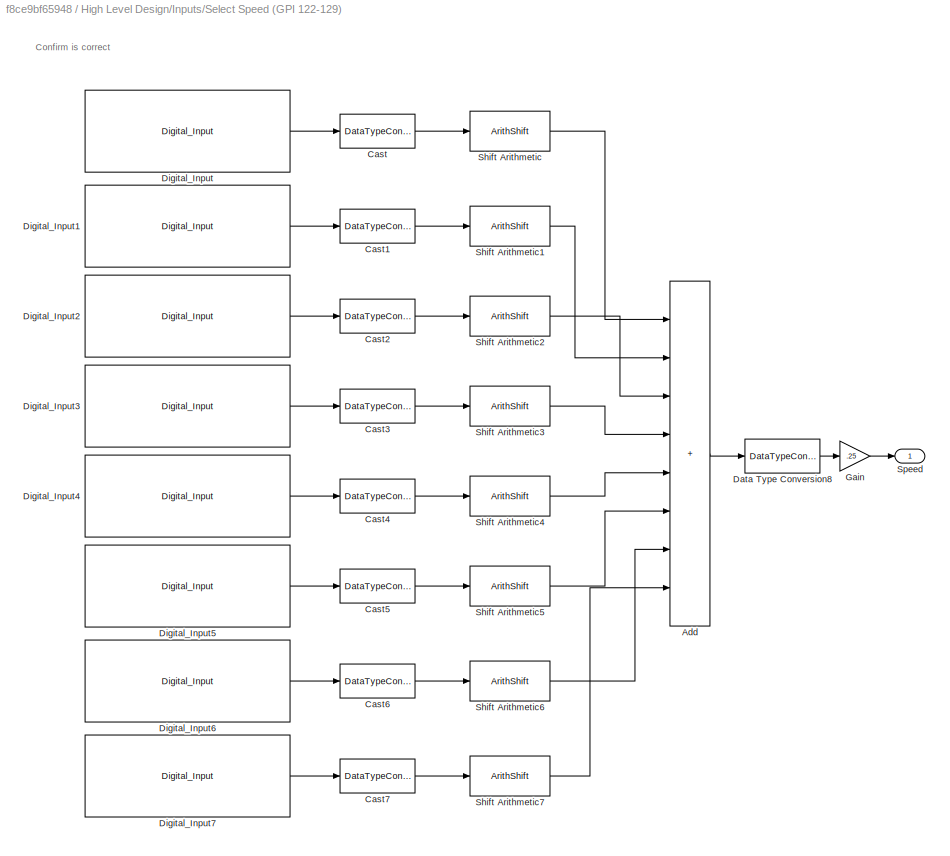
BLOCK [SubSystem] High Level Design/Inputs/Select Speed (GPI 122-129)
  Ports = [0, 1]
  RequestExecContextInheritance = off
BLOCK [Sum] High Level Design/Inputs/Select Speed (GPI 122-129)/Add
  IconShape = rectangular
  Inputs = ++++++++
  Ports = [8, 1]
BLOCK [DataTypeConversion] High Level Design/Inputs/Select Speed (GPI 122-129)/Cast
  OutDataTypeStr = uint8
  RndMeth = Floor
  SaturateOnIntegerOverflow = off
BLOCK [DataTypeConversion] High Level Design/Inputs/Select Speed (GPI 122-129)/Cast1
  OutDataTypeStr = uint8
  RndMeth = Floor
  SaturateOnIntegerOverflow = off
BLOCK [DataTypeConversion] High Level Design/Inputs/Select Speed (GPI 122-129)/Cast2
  OutDataTypeStr = uint8
  RndMeth = Floor
  SaturateOnIntegerOverflow = off
BLOCK [DataTypeConversion] High Level Design/Inputs/Select Speed (GPI 122-129)/Cast3
  OutDataTypeStr = uint8
  RndMeth = Floor
  SaturateOnIntegerOverflow = off
BLOCK [DataTypeConversion] High Level Design/Inputs/Select Speed (GPI 122-129)/Cast4
  OutDataTypeStr = uint8
  RndMeth = Floor
  SaturateOnIntegerOverflow = off
BLOCK [DataTypeConversion] High Level Design/Inputs/Select Speed (GPI 122-129)/Cast5
  OutDataTypeStr = uint8
  RndMeth = Floor
  SaturateOnIntegerOverflow = off
BLOCK [DataTypeConversion] High Level Design/Inputs/Select Speed (GPI 122-129)/Cast6
  OutDataTypeStr = uint8
  RndMeth = Floor
  SaturateOnIntegerOverflow = off
BLOCK [DataTypeConversion] High Level Design/Inputs/Select Speed (GPI 122-129)/Cast7
  OutDataTypeStr = uint8
  RndMeth = Floor
  SaturateOnIntegerOverflow = off
BLOCK [DataTypeConversion] High Level Design/Inputs/Select Speed (GPI 122-129)/Data Type Conversion8
  OutDataTypeStr = single
  RndMeth = Floor
  SaturateOnIntegerOverflow = off
BLOCK [Reference] High Level Design/Inputs/Select Speed (GPI 122-129)/Digital_Input  REF=mbd_s32k1xx_ec_toolbox/GPIO Blocks/Digital_Input
  Ports = [0, 1]
  SourceBlock = mbd_s32k1xx_ec_toolbox/GPIO Blocks/Digital_Input
  SourceType = gpio_s32k_input
BLOCK [Reference] High Level Design/Inputs/Select Speed (GPI 122-129)/Digital_Input1  REF=mbd_s32k1xx_ec_toolbox/GPIO Blocks/Digital_Input
  Ports = [0, 1]
  SourceBlock = mbd_s32k1xx_ec_toolbox/GPIO Blocks/Digital_Input
  SourceType = gpio_s32k_input
BLOCK [Reference] High Level Design/Inputs/Select Speed (GPI 122-129)/Digital_Input2  REF=mbd_s32k1xx_ec_toolbox/GPIO Blocks/Digital_Input
  Ports = [0, 1]
  SourceBlock = mbd_s32k1xx_ec_toolbox/GPIO Blocks/Digital_Input
  SourceType = gpio_s32k_input
BLOCK [Reference] High Level Design/Inputs/Select Speed (GPI 122-129)/Digital_Input3  REF=mbd_s32k1xx_ec_toolbox/GPIO Blocks/Digital_Input
  Ports = [0, 1]
  SourceBlock = mbd_s32k1xx_ec_toolbox/GPIO Blocks/Digital_Input
  SourceType = gpio_s32k_input
BLOCK [Reference] High Level Design/Inputs/Select Speed (GPI 122-129)/Digital_Input4  REF=mbd_s32k1xx_ec_toolbox/GPIO Blocks/Digital_Input
  Ports = [0, 1]
  SourceBlock = mbd_s32k1xx_ec_toolbox/GPIO Blocks/Digital_Input
  SourceType = gpio_s32k_input
BLOCK [Reference] High Level Design/Inputs/Select Speed (GPI 122-129)/Digital_Input5  REF=mbd_s32k1xx_ec_toolbox/GPIO Blocks/Digital_Input
  Ports = [0, 1]
  SourceBlock = mbd_s32k1xx_ec_toolbox/GPIO Blocks/Digital_Input
  SourceType = gpio_s32k_input
BLOCK [Reference] High Level Design/Inputs/Select Speed (GPI 122-129)/Digital_Input6  REF=mbd_s32k1xx_ec_toolbox/GPIO Blocks/Digital_Input
  Ports = [0, 1]
  SourceBlock = mbd_s32k1xx_ec_toolbox/GPIO Blocks/Digital_Input
  SourceType = gpio_s32k_input
BLOCK [Reference] High Level Design/Inputs/Select Speed (GPI 122-129)/Digital_Input7  REF=mbd_s32k1xx_ec_toolbox/GPIO Blocks/Digital_Input
  Ports = [0, 1]
  SourceBlock = mbd_s32k1xx_ec_toolbox/GPIO Blocks/Digital_Input
  SourceType = gpio_s32k_input
BLOCK [Gain] High Level Design/Inputs/Select Speed (GPI 122-129)/Gain
  Gain = .25
BLOCK [ArithShift] High Level Design/Inputs/Select Speed (GPI 122-129)/Shift Arithmetic
  BitShiftDirection = Left
  InputPortMap = u0
  Ports = [1, 1]
BLOCK [ArithShift] High Level Design/Inputs/Select Speed (GPI 122-129)/Shift Arithmetic1
  BitShiftDirection = Left
  BitShiftNumber = 1
  InputPortMap = u0
  Ports = [1, 1]
BLOCK [ArithShift] High Level Design/Inputs/Select Speed (GPI 122-129)/Shift Arithmetic2
  BitShiftDirection = Left
  BitShiftNumber = 2
  InputPortMap = u0
  Ports = [1, 1]
BLOCK [ArithShift] High Level Design/Inputs/Select Speed (GPI 122-129)/Shift Arithmetic3
  BitShiftDirection = Left
  BitShiftNumber = 3
  InputPortMap = u0
  Ports = [1, 1]
BLOCK [ArithShift] High Level Design/Inputs/Select Speed (GPI 122-129)/Shift Arithmetic4
  BitShiftDirection = Left
  BitShiftNumber = 4
  InputPortMap = u0
  Ports = [1, 1]
BLOCK [ArithShift] High Level Design/Inputs/Select Speed (GPI 122-129)/Shift Arithmetic5
  BitShiftDirection = Left
  BitShiftNumber = 5
  InputPortMap = u0
  Ports = [1, 1]
BLOCK [ArithShift] High Level Design/Inputs/Select Speed (GPI 122-129)/Shift Arithmetic6
  BitShiftDirection = Left
  BitShiftNumber = 6
  InputPortMap = u0
  Ports = [1, 1]
BLOCK [ArithShift] High Level Design/Inputs/Select Speed (GPI 122-129)/Shift Arithmetic7
  BitShiftDirection = Left
  BitShiftNumber = 7
  InputPortMap = u0
  Ports = [1, 1]
BLOCK [Outport] High Level Design/Inputs/Select Speed (GPI 122-129)/Speed
  VectorParamsAs1DForOutWhenUnconnected = off
BLOCK [Outport] High Level Design/Inputs/Steering Angle (delta)
  Port = 3
  VectorParamsAs1DForOutWhenUnconnected = off
BLOCK [Outport] High Level Design/Inputs/Throttle (Fd)
  Port = 4
  VectorParamsAs1DForOutWhenUnconnected = off
BLOCK [SubSystem] High Level Design/Inputs/Throttle (Potentiometer)
  Ports = [0, 1]
  RequestExecContextInheritance = off
BLOCK [Reference] High Level Design/Inputs/Throttle (Potentiometer)/ADC_Start  REF=mbd_s32k1xx_ec_toolbox/Motor Control Blocks/ADC Blocks/ADC_Start
  Ports = [0, 1]
  SourceBlock = mbd_s32k1xx_ec_toolbox/Motor Control Blocks/ADC Blocks/ADC_Start
  SourceType = adc_s32k_start_block
BLOCK [Constant] High Level Design/Inputs/Throttle (Potentiometer)/Constant1
  OutDataTypeStr = single
  Value = pot_offset
BLOCK [Outport] High Level Design/Inputs/Throttle (Potentiometer)/Fd
  OutDataTypeStr = single
  VectorParamsAs1DForOutWhenUnconnected = off
BLOCK [Gain] High Level Design/Inputs/Throttle (Potentiometer)/Gain
  Gain = pot_gain
  ParamDataTypeStr = single
BLOCK [Sum] High Level Design/Inputs/Throttle (Potentiometer)/Sum
  Inputs = |+-
  Ports = [2, 1]
BLOCK [SubSystem] High Level Design/Inputs/get wheel position
  Ports = [0, 1]
  RequestExecContextInheritance = off
BLOCK [Outport] High Level Design/Inputs/get wheel position/Haptic Wheel Position (radians)
  VectorParamsAs1DForOutWhenUnconnected = off
BLOCK [Reference] High Level Design/Inputs/get wheel position/Quadrature_Decoder  REF=mbd_s32k1xx_ec_toolbox/Motor Control Blocks/FTM Blocks/Quadrature_Decoder
  Ports = [0, 4]
  Priority = 1
  SourceBlock = mbd_s32k1xx_ec_toolbox/Motor Control Blocks/FTM Blocks/Quadrature_Decoder
  SourceType = FTM_s32k_qd_block
BLOCK [Terminator] High Level Design/Inputs/get wheel position/Terminator
BLOCK [Terminator] High Level Design/Inputs/get wheel position/Terminator1
BLOCK [Terminator] High Level Design/Inputs/get wheel position/Terminator2
BLOCK [SubSystem] High Level Design/Inputs/get wheel position/count to radians
  Ports = [1, 1]
  RequestExecContextInheritance = off
BLOCK [DataTypeConversion] High Level Design/Inputs/get wheel position/count to radians/Data Type Conversion
  OutDataTypeStr = uint16
  RndMeth = Floor
  SaturateOnIntegerOverflow = off
BLOCK [DataTypeConversion] High Level Design/Inputs/get wheel position/count to radians/Data Type Conversion1
  OutDataTypeStr = int16
  RndMeth = Floor
  SaturateOnIntegerOverflow = off
BLOCK [DataTypeConversion] High Level Design/Inputs/get wheel position/count to radians/Data Type Conversion2
  OutDataTypeStr = single
  RndMeth = Floor
  SaturateOnIntegerOverflow = off
BLOCK [Gain] High Level Design/Inputs/get wheel position/count to radians/Gain
  Gain = 360/4000
BLOCK [Gain] High Level Design/Inputs/get wheel position/count to radians/Gain1
  Gain = (2*pi)/360
BLOCK [Outport] High Level Design/Inputs/get wheel position/count to radians/Haptic Wheel Position (radians)
BLOCK [Inport] High Level Design/Inputs/get wheel position/count to radians/In1
BLOCK [Sum] High Level Design/Inputs/get wheel position/count to radians/Sum
  Inputs = |+-
  Ports = [2, 1]
BLOCK [Sum] High Level Design/Inputs/get wheel position/count to radians/Sum1
  Inputs = |++
  Ports = [2, 1]
BLOCK [UnitDelay] High Level Design/Inputs/get wheel position/count to radians/Unit Delay
  HasFrameUpgradeWarning = on
  SampleTime = -1
BLOCK [UnitDelay] High Level Design/Inputs/get wheel position/count to radians/Unit Delay1
  HasFrameUpgradeWarning = on
  SampleTime = -1
BLOCK [SubSystem] High Level Design/Outputs
  Ports = [5, 1]
  RequestExecContextInheritance = off
BLOCK [Inport] High Level Design/Outputs/Auto Torque
  Port = 5
BLOCK [SubSystem] High Level Design/Outputs/Extract x,y,psi
  Ports = [1, 1]
  RequestExecContextInheritance = off
BLOCK [SubSystem] High Level Design/Outputs/Extract x,y,psi (Cars 1 - 6)
  Ports = [1, 1]
  RequestExecContextInheritance = off
BLOCK [Demux] High Level Design/Outputs/Extract x,y,psi (Cars 1 - 6)/Demux
  Outputs = 6
  Ports = [1, 6]
BLOCK [SubSystem] High Level Design/Outputs/Extract x,y,psi (Cars 1 - 6)/Extract x,y,psi
  Ports = [1, 1]
  RequestExecContextInheritance = off
BLOCK [Demux] High Level Design/Outputs/Extract x,y,psi (Cars 1 - 6)/Extract x,y,psi/Demux
  Ports = [1, 4]
BLOCK [Mux] High Level Design/Outputs/Extract x,y,psi (Cars 1 - 6)/Extract x,y,psi/Mux
  DisplayOption = bar
  Inputs = 3
  Ports = [3, 1]
BLOCK [Terminator] High Level Design/Outputs/Extract x,y,psi (Cars 1 - 6)/Extract x,y,psi/Terminator
BLOCK [Reference] High Level Design/Outputs/Extract x,y,psi (Cars 1 - 6)/Extract x,y,psi/s,n to x,y  REF=Veh_Sim/s,n to x,y
  Ports = [2, 2]
  SourceBlock = Veh_Sim/s,n to x,y
BLOCK [Inport] High Level Design/Outputs/Extract x,y,psi (Cars 1 - 6)/Extract x,y,psi/s,n,psi,us
BLOCK [Outport] High Level Design/Outputs/Extract x,y,psi (Cars 1 - 6)/Extract x,y,psi/x,y,psi
  VectorParamsAs1DForOutWhenUnconnected = off
BLOCK [SubSystem] High Level Design/Outputs/Extract x,y,psi (Cars 1 - 6)/Extract x,y,psi1
  Ports = [1, 1]
  RequestExecContextInheritance = off
BLOCK [Demux] High Level Design/Outputs/Extract x,y,psi (Cars 1 - 6)/Extract x,y,psi1/Demux
  Ports = [1, 4]
BLOCK [Mux] High Level Design/Outputs/Extract x,y,psi (Cars 1 - 6)/Extract x,y,psi1/Mux
  DisplayOption = bar
  Inputs = 3
  Ports = [3, 1]
BLOCK [Terminator] High Level Design/Outputs/Extract x,y,psi (Cars 1 - 6)/Extract x,y,psi1/Terminator
BLOCK [Reference] High Level Design/Outputs/Extract x,y,psi (Cars 1 - 6)/Extract x,y,psi1/s,n to x,y  REF=Veh_Sim/s,n to x,y
  Ports = [2, 2]
  SourceBlock = Veh_Sim/s,n to x,y
BLOCK [Inport] High Level Design/Outputs/Extract x,y,psi (Cars 1 - 6)/Extract x,y,psi1/s,n,psi,us
BLOCK [Outport] High Level Design/Outputs/Extract x,y,psi (Cars 1 - 6)/Extract x,y,psi1/x,y,psi
  VectorParamsAs1DForOutWhenUnconnected = off
BLOCK [SubSystem] High Level Design/Outputs/Extract x,y,psi (Cars 1 - 6)/Extract x,y,psi2
  Ports = [1, 1]
  RequestExecContextInheritance = off
BLOCK [Demux] High Level Design/Outputs/Extract x,y,psi (Cars 1 - 6)/Extract x,y,psi2/Demux
  Ports = [1, 4]
BLOCK [Mux] High Level Design/Outputs/Extract x,y,psi (Cars 1 - 6)/Extract x,y,psi2/Mux
  DisplayOption = bar
  Inputs = 3
  Ports = [3, 1]
BLOCK [Terminator] High Level Design/Outputs/Extract x,y,psi (Cars 1 - 6)/Extract x,y,psi2/Terminator
BLOCK [Reference] High Level Design/Outputs/Extract x,y,psi (Cars 1 - 6)/Extract x,y,psi2/s,n to x,y  REF=Veh_Sim/s,n to x,y
  Ports = [2, 2]
  SourceBlock = Veh_Sim/s,n to x,y
BLOCK [Inport] High Level Design/Outputs/Extract x,y,psi (Cars 1 - 6)/Extract x,y,psi2/s,n,psi,us
BLOCK [Outport] High Level Design/Outputs/Extract x,y,psi (Cars 1 - 6)/Extract x,y,psi2/x,y,psi
  VectorParamsAs1DForOutWhenUnconnected = off
BLOCK [SubSystem] High Level Design/Outputs/Extract x,y,psi (Cars 1 - 6)/Extract x,y,psi3
  Ports = [1, 1]
  RequestExecContextInheritance = off
BLOCK [Demux] High Level Design/Outputs/Extract x,y,psi (Cars 1 - 6)/Extract x,y,psi3/Demux
  Ports = [1, 4]
BLOCK [Mux] High Level Design/Outputs/Extract x,y,psi (Cars 1 - 6)/Extract x,y,psi3/Mux
  DisplayOption = bar
  Inputs = 3
  Ports = [3, 1]
BLOCK [Terminator] High Level Design/Outputs/Extract x,y,psi (Cars 1 - 6)/Extract x,y,psi3/Terminator
BLOCK [Reference] High Level Design/Outputs/Extract x,y,psi (Cars 1 - 6)/Extract x,y,psi3/s,n to x,y  REF=Veh_Sim/s,n to x,y
  Ports = [2, 2]
  SourceBlock = Veh_Sim/s,n to x,y
BLOCK [Inport] High Level Design/Outputs/Extract x,y,psi (Cars 1 - 6)/Extract x,y,psi3/s,n,psi,us
BLOCK [Outport] High Level Design/Outputs/Extract x,y,psi (Cars 1 - 6)/Extract x,y,psi3/x,y,psi
  VectorParamsAs1DForOutWhenUnconnected = off
BLOCK [SubSystem] High Level Design/Outputs/Extract x,y,psi (Cars 1 - 6)/Extract x,y,psi4
  Ports = [1, 1]
  RequestExecContextInheritance = off
BLOCK [Demux] High Level Design/Outputs/Extract x,y,psi (Cars 1 - 6)/Extract x,y,psi4/Demux
  Ports = [1, 4]
BLOCK [Mux] High Level Design/Outputs/Extract x,y,psi (Cars 1 - 6)/Extract x,y,psi4/Mux
  DisplayOption = bar
  Inputs = 3
  Ports = [3, 1]
BLOCK [Terminator] High Level Design/Outputs/Extract x,y,psi (Cars 1 - 6)/Extract x,y,psi4/Terminator
BLOCK [Reference] High Level Design/Outputs/Extract x,y,psi (Cars 1 - 6)/Extract x,y,psi4/s,n to x,y  REF=Veh_Sim/s,n to x,y
  Ports = [2, 2]
  SourceBlock = Veh_Sim/s,n to x,y
BLOCK [Inport] High Level Design/Outputs/Extract x,y,psi (Cars 1 - 6)/Extract x,y,psi4/s,n,psi,us
BLOCK [Outport] High Level Design/Outputs/Extract x,y,psi (Cars 1 - 6)/Extract x,y,psi4/x,y,psi
  VectorParamsAs1DForOutWhenUnconnected = off
BLOCK [SubSystem] High Level Design/Outputs/Extract x,y,psi (Cars 1 - 6)/Extract x,y,psi5
  Ports = [1, 1]
  RequestExecContextInheritance = off
BLOCK [Demux] High Level Design/Outputs/Extract x,y,psi (Cars 1 - 6)/Extract x,y,psi5/Demux
  Ports = [1, 4]
BLOCK [Mux] High Level Design/Outputs/Extract x,y,psi (Cars 1 - 6)/Extract x,y,psi5/Mux
  DisplayOption = bar
  Inputs = 3
  Ports = [3, 1]
BLOCK [Terminator] High Level Design/Outputs/Extract x,y,psi (Cars 1 - 6)/Extract x,y,psi5/Terminator
BLOCK [Reference] High Level Design/Outputs/Extract x,y,psi (Cars 1 - 6)/Extract x,y,psi5/s,n to x,y  REF=Veh_Sim/s,n to x,y
  Ports = [2, 2]
  SourceBlock = Veh_Sim/s,n to x,y
BLOCK [Inport] High Level Design/Outputs/Extract x,y,psi (Cars 1 - 6)/Extract x,y,psi5/s,n,psi,us
BLOCK [Outport] High Level Design/Outputs/Extract x,y,psi (Cars 1 - 6)/Extract x,y,psi5/x,y,psi
  VectorParamsAs1DForOutWhenUnconnected = off
BLOCK [Mux] High Level Design/Outputs/Extract x,y,psi (Cars 1 - 6)/Mux
  DisplayOption = bar
  Inputs = 6
  Ports = [6, 1]
BLOCK [Inport] High Level Design/Outputs/Extract x,y,psi (Cars 1 - 6)/s,n,psi,us (Cars 1 - 6)
BLOCK [Outport] High Level Design/Outputs/Extract x,y,psi (Cars 1 - 6)/x,y,psi (Cars 1 - 6)
  VectorParamsAs1DForOutWhenUnconnected = off
BLOCK [Demux] High Level Design/Outputs/Extract x,y,psi/Demux
  Ports = [1, 4]
BLOCK [Mux] High Level Design/Outputs/Extract x,y,psi/Mux
  DisplayOption = bar
  Inputs = 3
  Ports = [3, 1]
BLOCK [Terminator] High Level Design/Outputs/Extract x,y,psi/Terminator
BLOCK [Reference] High Level Design/Outputs/Extract x,y,psi/s,n to x,y  REF=Veh_Sim/s,n to x,y
  Ports = [2, 2]
  SourceBlock = Veh_Sim/s,n to x,y
BLOCK [Inport] High Level Design/Outputs/Extract x,y,psi/s,n,psi,us
BLOCK [Outport] High Level Design/Outputs/Extract x,y,psi/x,y,psi
  VectorParamsAs1DForOutWhenUnconnected = off
BLOCK [Mux] High Level Design/Outputs/Mux
  DisplayOption = bar
  Inputs = 3
  Ports = [3, 1]
BLOCK [Inport] High Level Design/Outputs/Self-Aligning Torque
  Port = 4
BLOCK [Sum] High Level Design/Outputs/Sum1
  Inputs = |++
  Ports = [2, 1]
BLOCK [SubSystem] High Level Design/Outputs/Tx CAN
  Ports = [1]
  RequestExecContextInheritance = off
BLOCK [Reference] High Level Design/Outputs/Tx CAN/Byte Packing   REF=xpcutilitieslib/Byte Packing 
  Ports = [1, 1]
  SourceBlock = xpcutilitieslib/Byte Packing
  SourceProductBaseCode = XP
  SourceType = xpcbytepacking
BLOCK [Reference] High Level Design/Outputs/Tx CAN/Byte Packing 1  REF=xpcutilitieslib/Byte Packing 
  Ports = [1, 1]
  SourceBlock = xpcutilitieslib/Byte Packing
  SourceProductBaseCode = XP
  SourceType = xpcbytepacking
BLOCK [Constant] High Level Design/Outputs/Tx CAN/Constant
  OutDataTypeStr = uint8
  Value = 8
BLOCK [Constant] High Level Design/Outputs/Tx CAN/Constant1
  OutDataTypeStr = uint8
  Value = 8
BLOCK [Demux] High Level Design/Outputs/Tx CAN/Demux
  Outputs = 2
  Ports = [1, 2]
BLOCK [Reference] High Level Design/Outputs/Tx CAN/FCAN_Send  REF=mbd_s32k1xx_ec_toolbox/Communication Blocks/CAN Blocks/FCAN_Send
  Ports = [2]
  SourceBlock = mbd_s32k1xx_ec_toolbox/Communication Blocks/CAN Blocks/FCAN_Send
  SourceType = fcan_s32k_send
BLOCK [Reference] High Level Design/Outputs/Tx CAN/FCAN_Send1  REF=mbd_s32k1xx_ec_toolbox/Communication Blocks/CAN Blocks/FCAN_Send
  Ports = [2]
  SourceBlock = mbd_s32k1xx_ec_toolbox/Communication Blocks/CAN Blocks/FCAN_Send
  SourceType = fcan_s32k_send
BLOCK [Inport] High Level Design/Outputs/Tx CAN/s,n,psi,us
BLOCK [Inport] High Level Design/Outputs/s, n, psi, us (Cars 1-6)
BLOCK [Inport] High Level Design/Outputs/s, n, psi, us (This Car)
  Port = 2
BLOCK [Inport] High Level Design/Outputs/u (This car)
  Port = 3
BLOCK [SubSystem] High Level Design/Outputs/write torque
  Ports = [1]
  RequestExecContextInheritance = off
BLOCK [Inport] High Level Design/Outputs/write torque/Reaction Torque
BLOCK [SubSystem] High Level Design/Outputs/write torque/reaction torque
  Ports = [1]
  RequestExecContextInheritance = off
BLOCK [Constant] High Level Design/Outputs/write torque/reaction torque/Constant
  OutDataTypeStr = single
  Value = 0.5
BLOCK [Reference] High Level Design/Outputs/write torque/reaction torque/FTM_PWM_Config  REF=mbd_s32k1xx_ec_toolbox/Motor Control Blocks/FTM Blocks/FTM_PWM_Config
  Ports = [1, 1]
  SourceBlock = mbd_s32k1xx_ec_toolbox/Motor Control Blocks/FTM Blocks/FTM_PWM_Config
  SourceType = FTM_s32k_pwm_config_block
BLOCK [Gain] High Level Design/Outputs/write torque/reaction torque/Gain
  Gain = 3.16e-4
BLOCK [Saturate] High Level Design/Outputs/write torque/reaction torque/Saturation
  LowerLimit = 0.24
  UpperLimit = 0.76
BLOCK [Sum] High Level Design/Outputs/write torque/reaction torque/Sum
  Inputs = |++
  OutDataTypeStr = single
  Ports = [2, 1]
BLOCK [Terminator] High Level Design/Outputs/write torque/reaction torque/Terminator
BLOCK [Inport] High Level Design/Outputs/write torque/reaction torque/torque
BLOCK [Outport] High Level Design/Outputs/x, y, pxi (Cars 1-6)
  VectorParamsAs1DForOutWhenUnconnected = off
BLOCK [Outport] High Level Design/Serial
  VectorParamsAs1DForOutWhenUnconnected = off
BLOCK [SubSystem] High Level Design/Vehicle Model
  Ports = [2, 3]
  RequestExecContextInheritance = off
BLOCK [DiscreteIntegrator] High Level Design/Vehicle Model/Discrete-Time Integrator1
  ICPrevOutput = DiscIntNeverNeededParam
  ICPrevScaledInput = DiscIntNeverNeededParam
  InitialConditionSetting = Auto
  Ports = [1, 1]
  SampleTime = -1
BLOCK [DiscreteIntegrator] High Level Design/Vehicle Model/Discrete-Time Integrator2
  ICPrevOutput = DiscIntNeverNeededParam
  ICPrevScaledInput = DiscIntNeverNeededParam
  InitialConditionSetting = Auto
  Ports = [1, 1]
  SampleTime = -1
BLOCK [DiscreteIntegrator] High Level Design/Vehicle Model/Discrete-Time Integrator3
  ICPrevOutput = DiscIntNeverNeededParam
  ICPrevScaledInput = DiscIntNeverNeededParam
  InitialConditionSetting = Auto
  Ports = [1, 1]
  SampleTime = -1
BLOCK [Inport] High Level Design/Vehicle Model/Driving force (Fd)
BLOCK [Gain] High Level Design/Vehicle Model/Gain2
  Gain = -Ak
BLOCK [Reference] High Level Design/Vehicle Model/Look up Forward Vector  REF=Veh_Sim/Look up Forward Vector
  Ports = [1, 2]
  SourceBlock = Veh_Sim/Look up Forward Vector
BLOCK [Mux] High Level Design/Vehicle Model/Mux
  DisplayOption = bar
  Ports = [4, 1]
BLOCK [Outport] High Level Design/Vehicle Model/NEW s,n,psi,us (This car)
BLOCK [Outport] High Level Design/Vehicle Model/NEW u (This car)
  Port = 2
BLOCK [SubSystem] High Level Design/Vehicle Model/Phi dot
  Ports = [2, 1]
  RequestExecContextInheritance = off
BLOCK [Gain] High Level Design/Vehicle Model/Phi dot/Gain3
  Gain = 1/L1
BLOCK [Outport] High Level Design/Vehicle Model/Phi dot/Phi dot
BLOCK [Product] High Level Design/Vehicle Model/Phi dot/Product1
  Ports = [2, 1]
BLOCK [Trigonometry] High Level Design/Vehicle Model/Phi dot/Trigonometric Function
  Ports = [1, 1]
BLOCK [Inport] High Level Design/Vehicle Model/Phi dot/delta
BLOCK [Inport] High Level Design/Vehicle Model/Phi dot/u
  Port = 2
BLOCK [Product] High Level Design/Vehicle Model/Product
  Ports = [2, 1]
BLOCK [Outport] High Level Design/Vehicle Model/Self-Aligning Torque (sigma)
  Port = 3
BLOCK [Inport] High Level Design/Vehicle Model/Steering angle (delta)
  Port = 2
BLOCK [SubSystem] High Level Design/Vehicle Model/Subsystem
  Ports = [5, 1]
  RequestExecContextInheritance = off
BLOCK [Trigonometry] High Level Design/Vehicle Model/Subsystem/Cos1
  Ports = [1, 1]
BLOCK [Trigonometry] High Level Design/Vehicle Model/Subsystem/Cos3
  Operator = cos
  Ports = [1, 1]
BLOCK [Product] High Level Design/Vehicle Model/Subsystem/Product1
  Ports = [2, 1]
BLOCK [Product] High Level Design/Vehicle Model/Subsystem/Product2
  Ports = [2, 1]
BLOCK [Product] High Level Design/Vehicle Model/Subsystem/Product3
  Ports = [2, 1]
BLOCK [Sum] High Level Design/Vehicle Model/Subsystem/Sum1
  Inputs = |++
  Ports = [2, 1]
BLOCK [Sum] High Level Design/Vehicle Model/Subsystem/Sum2
  Inputs = |++
  Ports = [2, 1]
BLOCK [Sum] High Level Design/Vehicle Model/Subsystem/Sum3
  Inputs = |++
  Ports = [2, 1]
BLOCK [Inport] High Level Design/Vehicle Model/Subsystem/delta
BLOCK [Inport] High Level Design/Vehicle Model/Subsystem/fx
  Port = 2
BLOCK [Inport] High Level Design/Vehicle Model/Subsystem/fy
  Port = 3
BLOCK [Inport] High Level Design/Vehicle Model/Subsystem/psi
  Port = 4
BLOCK [Inport] High Level Design/Vehicle Model/Subsystem/u
  Port = 5
BLOCK [Outport] High Level Design/Vehicle Model/Subsystem/us
BLOCK [SubSystem] High Level Design/Vehicle Model/Subsystem1
  Ports = [1, 1]
  RequestExecContextInheritance = off
BLOCK [DiscreteIntegrator] High Level Design/Vehicle Model/Subsystem1/Discrete-Time Integrator
  ICPrevOutput = DiscIntNeverNeededParam
  ICPrevScaledInput = DiscIntNeverNeededParam
  InitialConditionSetting = Auto
  Ports = [1, 1]
  SampleTime = -1
BLOCK [Inport] High Level Design/Vehicle Model/Subsystem1/Driving force (Fd)
BLOCK [Gain] High Level Design/Vehicle Model/Subsystem1/Gain
  Gain = 1/m
BLOCK [Gain] High Level Design/Vehicle Model/Subsystem1/Gain1
  Gain = b
BLOCK [Sum] High Level Design/Vehicle Model/Subsystem1/Sum
  Inputs = |+-
  Ports = [2, 1]
BLOCK [Outport] High Level Design/Vehicle Model/Subsystem1/u
BLOCK [SubSystem] High Level Design/Vehicle Model/X dot 
  Ports = [3, 1]
  RequestExecContextInheritance = off
BLOCK [Trigonometry] High Level Design/Vehicle Model/X dot /Cos
  Operator = cos
  Ports = [1, 1]
BLOCK [Trigonometry] High Level Design/Vehicle Model/X dot /Cos1
  Operator = cos
  Ports = [1, 1]
BLOCK [Inport] High Level Design/Vehicle Model/X dot /Delta
BLOCK [Gain] High Level Design/Vehicle Model/X dot /Gain3
  Gain = -(L2/L1)
BLOCK [Inport] High Level Design/Vehicle Model/X dot /Phi
  Port = 2
BLOCK [Product] High Level Design/Vehicle Model/X dot /Product1
  Ports = [2, 1]
BLOCK [Product] High Level Design/Vehicle Model/X dot /Product3
  Ports = [2, 1]
BLOCK [Product] High Level Design/Vehicle Model/X dot /Product5
  Ports = [2, 1]
BLOCK [Trigonometry] High Level Design/Vehicle Model/X dot /Sin
  Ports = [1, 1]
BLOCK [Sum] High Level Design/Vehicle Model/X dot /Sum1
  Inputs = |++
  Ports = [2, 1]
BLOCK [Trigonometry] High Level Design/Vehicle Model/X dot /Trigonometric Function
  Ports = [1, 1]
BLOCK [Inport] High Level Design/Vehicle Model/X dot /U
  Port = 3
BLOCK [Outport] High Level Design/Vehicle Model/X dot /X dot
BLOCK [SubSystem] High Level Design/Vehicle Model/Y dot
  Ports = [3, 1]
  RequestExecContextInheritance = off
BLOCK [Trigonometry] High Level Design/Vehicle Model/Y dot/Cos2
  Operator = cos
  Ports = [1, 1]
BLOCK [Trigonometry] High Level Design/Vehicle Model/Y dot/Cos3
  Operator = cos
  Ports = [1, 1]
BLOCK [Inport] High Level Design/Vehicle Model/Y dot/Delta
BLOCK [Gain] High Level Design/Vehicle Model/Y dot/Gain4
  Gain = (L2/L1)
BLOCK [Inport] High Level Design/Vehicle Model/Y dot/Phi
  Port = 2
BLOCK [Product] High Level Design/Vehicle Model/Y dot/Product2
  Ports = [2, 1]
BLOCK [Product] High Level Design/Vehicle Model/Y dot/Product4
  Ports = [2, 1]
BLOCK [Product] High Level Design/Vehicle Model/Y dot/Product6
  Ports = [2, 1]
BLOCK [Trigonometry] High Level Design/Vehicle Model/Y dot/Sin1
  Ports = [1, 1]
BLOCK [Trigonometry] High Level Design/Vehicle Model/Y dot/Sin2
  Ports = [1, 1]
BLOCK [Sum] High Level Design/Vehicle Model/Y dot/Sum2
  Inputs = |++
  Ports = [2, 1]
BLOCK [Outport] High Level Design/Vehicle Model/Y dot/Y dot
BLOCK [Inport] High Level Design/Vehicle Model/Y dot/u
  Port = 3
BLOCK [Reference] High Level Design/Vehicle Model/x,y to s,n  REF=Veh_Sim/x,y to s,n
  Ports = [2, 2]
  SourceBlock = Veh_Sim/x,y to s,n
BLOCK [TriggerPort] High Level Design/function
  Ports = []
  StatesWhenEnabling = held
  TriggerType = function-call
  VariantControl = (inherit)
BLOCK [Inport] High Level Design/s,n,psi,us (Cars 1-6)
BLOCK [Reference] LPUART_Config  REF=mbd_s32k1xx_ec_toolbox/Communication Blocks/UART Blocks/LPUART_Config
  Ports = []
  Priority = 2
  SourceBlock = mbd_s32k1xx_ec_toolbox/Communication Blocks/UART Blocks/LPUART_Config
  SourceType = lpuart_s32k_config
BLOCK [Reference] MBD_S32K1xx_Config_Information  REF=mbd_s32k1xx_ec_toolbox/MBD_S32K1xx_Config_Information
  Ports = []
  SourceBlock = mbd_s32k1xx_ec_toolbox/MBD_S32K1xx_Config_Information
  SourceType = MBDTBX_EC_S32K
BLOCK [SubSystem] PWM Filter
  Ports = []
  RequestExecContextInheritance = off
BLOCK [Constant] PWM Filter/Constant
  OutDataTypeStr = single
  Value = 0.5
BLOCK [Constant] PWM Filter/Constant1
  OutDataTypeStr = single
  Value = 0
BLOCK [Reference] PWM Filter/FTM_PWM_Config  REF=mbd_s32k1xx_ec_toolbox/Motor Control Blocks/FTM Blocks/FTM_PWM_Config
  Ports = [2, 2]
  SourceBlock = mbd_s32k1xx_ec_toolbox/Motor Control Blocks/FTM Blocks/FTM_PWM_Config
  SourceType = FTM_s32k_pwm_config_block
BLOCK [Terminator] PWM Filter/Terminator
BLOCK [Terminator] PWM Filter/Terminator1
BLOCK [RateTransition] Rate Transition
BLOCK [SubSystem] Serial Sim Out to Virtual Sim
  Ports = [1]
  RequestExecContextInheritance = off
BLOCK [Reference] Serial Sim Out to Virtual Sim/Function-Call Generator1  REF=simulink/Ports &
Subsystems/Function-Call
Generator
  Ports = [0, 1]
  SourceBlock = simulink/Ports &\nSubsystems/Function-Call\nGenerator
  SourceProductBaseCode = SL
  SourceType = Function-Call Generator
BLOCK [Reference] Serial Sim Out to Virtual Sim/Function-Call Generator2  REF=simulink/Ports &
Subsystems/Function-Call
Generator
  Ports = [0, 1]
  SourceBlock = simulink/Ports &\nSubsystems/Function-Call\nGenerator
  SourceProductBaseCode = SL
  SourceType = Function-Call Generator
BLOCK [RateTransition] Serial Sim Out to Virtual Sim/RT
  OutPortSampleTime = 0.0005
  OutPortSampleTimeOpt = Inherit
BLOCK [RateTransition] Serial Sim Out to Virtual Sim/RT1
  OutPortSampleTime = 0.0005
  OutPortSampleTimeOpt = Inherit
BLOCK [SubSystem] Serial Sim Out to Virtual Sim/Serial
  Ports = [1, 2, 0, 1]
  RequestExecContextInheritance = off
  TreatAsAtomicUnit = on
BLOCK [Reference] Serial Sim Out to Virtual Sim/Serial/Byte Packing   REF=xpcutilitieslib/Byte Packing 
  Ports = [1, 1]
  SourceBlock = xpcutilitieslib/Byte Packing
  SourceProductBaseCode = XP
  SourceType = xpcbytepacking
BLOCK [Constant] Serial Sim Out to Virtual Sim/Serial/Constant2
  OutDataTypeStr = uint8
  Value = uint8('s')
BLOCK [Constant] Serial Sim Out to Virtual Sim/Serial/Constant3
  OutDataTypeStr = uint8
  Value = uint8('e')
BLOCK [Delay] Serial Sim Out to Virtual Sim/Serial/Delay
  DelayLength = 1
  InputPortMap = u0
  Ports = [1, 1]
BLOCK [Mux] Serial Sim Out to Virtual Sim/Serial/Mux
  DisplayOption = bar
  Inputs = 3
  Ports = [3, 1]
BLOCK [Logic] Serial Sim Out to Virtual Sim/Serial/NOT
  AllPortsSameDT = off
  IconShape = distinctive
  Operator = NOT
  OutDataTypeStr = boolean
  Ports = [1, 1]
BLOCK [TriggerPort] Serial Sim Out to Virtual Sim/Serial/Trigger
  Ports = []
  StatesWhenEnabling = held
  TriggerType = function-call
  VariantControl = (inherit)
BLOCK [Inport] Serial Sim Out to Virtual Sim/Serial/data
BLOCK [Outport] Serial Sim Out to Virtual Sim/Serial/data_out
  Port = 2
  VectorParamsAs1DForOutWhenUnconnected = off
BLOCK [Outport] Serial Sim Out to Virtual Sim/Serial/reset
  VectorParamsAs1DForOutWhenUnconnected = off
BLOCK [SubSystem] Serial Sim Out to Virtual Sim/UART Iteration
  Ports = [2, 0, 0, 1]
  RequestExecContextInheritance = off
BLOCK [MultiPortSwitch] Serial Sim Out to Virtual Sim/UART Iteration/Index Vector
  InputSameDT = off
  Inputs = 1
  Ports = [2, 1]
  SaturateOnIntegerOverflow = off
BLOCK [Reference] Serial Sim Out to Virtual Sim/UART Iteration/LPUART_Transmit  REF=mbd_s32k1xx_ec_toolbox/Communication Blocks/UART Blocks/LPUART_Transmit
  Ports = [1]
  SourceBlock = mbd_s32k1xx_ec_toolbox/Communication Blocks/UART Blocks/LPUART_Transmit
  SourceType = lpuart_s32k_transmit
BLOCK [SubSystem] Serial Sim Out to Virtual Sim/UART Iteration/Resettable Subsystem
  Ports = [0, 1, 0, 0, 0, 0, 0, 0, 1]
  RequestExecContextInheritance = off
  TreatAsAtomicUnit = on
BLOCK [Constant] Serial Sim Out to Virtual Sim/UART Iteration/Resettable Subsystem/Constant
BLOCK [Delay] Serial Sim Out to Virtual Sim/UART Iteration/Resettable Subsystem/Delay
  DelayLength = 1
  InputPortMap = u0
  Ports = [1, 1]
BLOCK [Outport] Serial Sim Out to Virtual Sim/UART Iteration/Resettable Subsystem/Out1
  VectorParamsAs1DForOutWhenUnconnected = off
BLOCK [ResetPort] Serial Sim Out to Virtual Sim/UART Iteration/Resettable Subsystem/Reset
  DisableCoverage = on
  ResetTriggerType = either
BLOCK [Sum] Serial Sim Out to Virtual Sim/UART Iteration/Resettable Subsystem/Sum
  Inputs = |++
  Ports = [2, 1]
BLOCK [TriggerPort] Serial Sim Out to Virtual Sim/UART Iteration/Trigger
  Ports = []
  StatesWhenEnabling = held
  TriggerType = function-call
  VariantControl = (inherit)
BLOCK [Inport] Serial Sim Out to Virtual Sim/UART Iteration/data
  Port = 2
BLOCK [Inport] Serial Sim Out to Virtual Sim/UART Iteration/reset
BLOCK [Inport] Serial Sim Out to Virtual Sim/data
ANNOTATION (root): Communication to Visualization on PC Do not modify
ANNOTATION (root): Initialize LPUART and FCAN.TODO: initialize ADC
ANNOTATION (root): System Configuration and Initialization Do not replace config block (contains modified compilation flags)
ANNOTATION (root): System Model TODO: Fill in "High Level Design" block Modify CAN addresses in parameters.m
ANNOTATION Can Network Inputs: Do not modify anything here Set base IDs in the parameters file
ANNOTATION Can Network Inputs: These blocks may not display properly until CAN configuration has been comleted
ANNOTATION Can Network Inputs/Can Message Mailbox Setup: Base 10
ANNOTATION Can Network Inputs/Can Message Mailbox Setup: Base 100
ANNOTATION Can Network Inputs/Can Message Mailbox Setup: Base 20
ANNOTATION Can Network Inputs/Can Message Mailbox Setup: Base 30
ANNOTATION Can Network Inputs/Can Message Mailbox Setup: Base 40
ANNOTATION Can Network Inputs/Can Message Mailbox Setup: Base 50
ANNOTATION Can Network Inputs/Can Message Mailbox Setup: Base 60
ANNOTATION Can Network Inputs/Can Message Mailbox Setup: Base 70
ANNOTATION High Level Design: Automatic Cruise Control
ANNOTATION High Level Design: Automatic Steering
ANNOTATION High Level Design/Auto Cruise Control/Position Ctrl: u
ANNOTATION High Level Design/Inputs: Confirm is correct
ANNOTATION High Level Design/Inputs/Select Speed (GPI 122-129): Confirm is correct
ANNOTATION High Level Design/Outputs: TODO: Output torque Transmit two CAN messages
ANNOTATION High Level Design/Outputs/Tx CAN: Use FCAN_Send block to transmit two messages to the CAN bus
ANNOTATION High Level Design/Outputs/Tx CAN: Use pack block to generate data arrays Do not use any mailbox buffers that are used for receives
ANNOTATION Serial Sim Out to Virtual Sim: UART transmission is non-blocking. We must wait for transmission to complete before sending the next byte. Could use LPUART interrupts block or just periodcally transmit to allow time for buffer to clear
LINE Can Network Inputs/Array of 6 base IDs:1 -> Can Network Inputs/Extract CAN data:3
LINE Can Network Inputs/Extract CAN data/CAN Base IDs (Cars 1-6):1 -> Can Network Inputs/Extract CAN data/Demux:1
LINE Can Network Inputs/Extract CAN data/Data to s,n,psi,us /CAN ID:1 -> Can Network Inputs/Extract CAN data/Data to s,n,psi,us /Subtract:1
NET Can Network Inputs/Extract CAN data/Data to s,n,psi,us /Data:1 -> Can Network Inputs/Extract CAN data/Data to s,n,psi,us /Switch Case Action Subsystem2:1, Can Network Inputs/Extract CAN data/Data to s,n,psi,us /Switch Case Action Subsystem3:1
LINE Can Network Inputs/Extract CAN data/Data to s,n,psi,us /If:1 -> Can Network Inputs/Extract CAN data/Data to s,n,psi,us /Switch Case Action Subsystem2:ifaction
LINE Can Network Inputs/Extract CAN data/Data to s,n,psi,us /If:2 -> Can Network Inputs/Extract CAN data/Data to s,n,psi,us /Switch Case Action Subsystem3:ifaction
LINE Can Network Inputs/Extract CAN data/Data to s,n,psi,us /Mux3:1 -> Can Network Inputs/Extract CAN data/Data to s,n,psi,us /Out1:1
LINE Can Network Inputs/Extract CAN data/Data to s,n,psi,us /Subtract:1 -> Can Network Inputs/Extract CAN data/Data to s,n,psi,us /If:1
LINE Can Network Inputs/Extract CAN data/Data to s,n,psi,us /Switch Case Action Subsystem2/Byte Unpacking :1 -> Can Network Inputs/Extract CAN data/Data to s,n,psi,us /Switch Case Action Subsystem2/s:1
LINE Can Network Inputs/Extract CAN data/Data to s,n,psi,us /Switch Case Action Subsystem2/Byte Unpacking :2 -> Can Network Inputs/Extract CAN data/Data to s,n,psi,us /Switch Case Action Subsystem2/n:1
LINE Can Network Inputs/Extract CAN data/Data to s,n,psi,us /Switch Case Action Subsystem2/s,n:1 -> Can Network Inputs/Extract CAN data/Data to s,n,psi,us /Switch Case Action Subsystem2/Byte Unpacking :1
LINE Can Network Inputs/Extract CAN data/Data to s,n,psi,us /Switch Case Action Subsystem2:1 -> Can Network Inputs/Extract CAN data/Data to s,n,psi,us /Mux3:1
LINE Can Network Inputs/Extract CAN data/Data to s,n,psi,us /Switch Case Action Subsystem2:2 -> Can Network Inputs/Extract CAN data/Data to s,n,psi,us /Mux3:2
LINE Can Network Inputs/Extract CAN data/Data to s,n,psi,us /Switch Case Action Subsystem3/Byte Unpacking :1 -> Can Network Inputs/Extract CAN data/Data to s,n,psi,us /Switch Case Action Subsystem3/psi:1
LINE Can Network Inputs/Extract CAN data/Data to s,n,psi,us /Switch Case Action Subsystem3/Byte Unpacking :2 -> Can Network Inputs/Extract CAN data/Data to s,n,psi,us /Switch Case Action Subsystem3/us:1
LINE Can Network Inputs/Extract CAN data/Data to s,n,psi,us /Switch Case Action Subsystem3/psi,us:1 -> Can Network Inputs/Extract CAN data/Data to s,n,psi,us /Switch Case Action Subsystem3/Byte Unpacking :1
LINE Can Network Inputs/Extract CAN data/Data to s,n,psi,us /Switch Case Action Subsystem3:1 -> Can Network Inputs/Extract CAN data/Data to s,n,psi,us /Mux3:3
LINE Can Network Inputs/Extract CAN data/Data to s,n,psi,us /Switch Case Action Subsystem3:2 -> Can Network Inputs/Extract CAN data/Data to s,n,psi,us /Mux3:4
LINE Can Network Inputs/Extract CAN data/Data to s,n,psi,us /Vehicle Base ID:1 -> Can Network Inputs/Extract CAN data/Data to s,n,psi,us /Subtract:2
LINE Can Network Inputs/Extract CAN data/Data to s,n,psi,us 1/CAN ID:1 -> Can Network Inputs/Extract CAN data/Data to s,n,psi,us 1/Subtract:1
NET Can Network Inputs/Extract CAN data/Data to s,n,psi,us 1/Data:1 -> Can Network Inputs/Extract CAN data/Data to s,n,psi,us 1/Switch Case Action Subsystem2:1, Can Network Inputs/Extract CAN data/Data to s,n,psi,us 1/Switch Case Action Subsystem3:1
LINE Can Network Inputs/Extract CAN data/Data to s,n,psi,us 1/If:1 -> Can Network Inputs/Extract CAN data/Data to s,n,psi,us 1/Switch Case Action Subsystem2:ifaction
LINE Can Network Inputs/Extract CAN data/Data to s,n,psi,us 1/If:2 -> Can Network Inputs/Extract CAN data/Data to s,n,psi,us 1/Switch Case Action Subsystem3:ifaction
LINE Can Network Inputs/Extract CAN data/Data to s,n,psi,us 1/Mux3:1 -> Can Network Inputs/Extract CAN data/Data to s,n,psi,us 1/Out1:1
LINE Can Network Inputs/Extract CAN data/Data to s,n,psi,us 1/Subtract:1 -> Can Network Inputs/Extract CAN data/Data to s,n,psi,us 1/If:1
LINE Can Network Inputs/Extract CAN data/Data to s,n,psi,us 1/Switch Case Action Subsystem2/Byte Unpacking :1 -> Can Network Inputs/Extract CAN data/Data to s,n,psi,us 1/Switch Case Action Subsystem2/s:1
LINE Can Network Inputs/Extract CAN data/Data to s,n,psi,us 1/Switch Case Action Subsystem2/Byte Unpacking :2 -> Can Network Inputs/Extract CAN data/Data to s,n,psi,us 1/Switch Case Action Subsystem2/n:1
LINE Can Network Inputs/Extract CAN data/Data to s,n,psi,us 1/Switch Case Action Subsystem2/s,n:1 -> Can Network Inputs/Extract CAN data/Data to s,n,psi,us 1/Switch Case Action Subsystem2/Byte Unpacking :1
LINE Can Network Inputs/Extract CAN data/Data to s,n,psi,us 1/Switch Case Action Subsystem2:1 -> Can Network Inputs/Extract CAN data/Data to s,n,psi,us 1/Mux3:1
LINE Can Network Inputs/Extract CAN data/Data to s,n,psi,us 1/Switch Case Action Subsystem2:2 -> Can Network Inputs/Extract CAN data/Data to s,n,psi,us 1/Mux3:2
LINE Can Network Inputs/Extract CAN data/Data to s,n,psi,us 1/Switch Case Action Subsystem3/Byte Unpacking :1 -> Can Network Inputs/Extract CAN data/Data to s,n,psi,us 1/Switch Case Action Subsystem3/psi:1
LINE Can Network Inputs/Extract CAN data/Data to s,n,psi,us 1/Switch Case Action Subsystem3/Byte Unpacking :2 -> Can Network Inputs/Extract CAN data/Data to s,n,psi,us 1/Switch Case Action Subsystem3/us:1
LINE Can Network Inputs/Extract CAN data/Data to s,n,psi,us 1/Switch Case Action Subsystem3/psi,us:1 -> Can Network Inputs/Extract CAN data/Data to s,n,psi,us 1/Switch Case Action Subsystem3/Byte Unpacking :1
LINE Can Network Inputs/Extract CAN data/Data to s,n,psi,us 1/Switch Case Action Subsystem3:1 -> Can Network Inputs/Extract CAN data/Data to s,n,psi,us 1/Mux3:3
LINE Can Network Inputs/Extract CAN data/Data to s,n,psi,us 1/Switch Case Action Subsystem3:2 -> Can Network Inputs/Extract CAN data/Data to s,n,psi,us 1/Mux3:4
LINE Can Network Inputs/Extract CAN data/Data to s,n,psi,us 1/Vehicle Base ID:1 -> Can Network Inputs/Extract CAN data/Data to s,n,psi,us 1/Subtract:2
LINE Can Network Inputs/Extract CAN data/Data to s,n,psi,us 1:1 -> Can Network Inputs/Extract CAN data/Mux:2
LINE Can Network Inputs/Extract CAN data/Data to s,n,psi,us 2/CAN ID:1 -> Can Network Inputs/Extract CAN data/Data to s,n,psi,us 2/Subtract:1
NET Can Network Inputs/Extract CAN data/Data to s,n,psi,us 2/Data:1 -> Can Network Inputs/Extract CAN data/Data to s,n,psi,us 2/Switch Case Action Subsystem2:1, Can Network Inputs/Extract CAN data/Data to s,n,psi,us 2/Switch Case Action Subsystem3:1
LINE Can Network Inputs/Extract CAN data/Data to s,n,psi,us 2/If:1 -> Can Network Inputs/Extract CAN data/Data to s,n,psi,us 2/Switch Case Action Subsystem2:ifaction
LINE Can Network Inputs/Extract CAN data/Data to s,n,psi,us 2/If:2 -> Can Network Inputs/Extract CAN data/Data to s,n,psi,us 2/Switch Case Action Subsystem3:ifaction
LINE Can Network Inputs/Extract CAN data/Data to s,n,psi,us 2/Mux3:1 -> Can Network Inputs/Extract CAN data/Data to s,n,psi,us 2/Out1:1
LINE Can Network Inputs/Extract CAN data/Data to s,n,psi,us 2/Subtract:1 -> Can Network Inputs/Extract CAN data/Data to s,n,psi,us 2/If:1
LINE Can Network Inputs/Extract CAN data/Data to s,n,psi,us 2/Switch Case Action Subsystem2/Byte Unpacking :1 -> Can Network Inputs/Extract CAN data/Data to s,n,psi,us 2/Switch Case Action Subsystem2/s:1
LINE Can Network Inputs/Extract CAN data/Data to s,n,psi,us 2/Switch Case Action Subsystem2/Byte Unpacking :2 -> Can Network Inputs/Extract CAN data/Data to s,n,psi,us 2/Switch Case Action Subsystem2/n:1
LINE Can Network Inputs/Extract CAN data/Data to s,n,psi,us 2/Switch Case Action Subsystem2/s,n:1 -> Can Network Inputs/Extract CAN data/Data to s,n,psi,us 2/Switch Case Action Subsystem2/Byte Unpacking :1
LINE Can Network Inputs/Extract CAN data/Data to s,n,psi,us 2/Switch Case Action Subsystem2:1 -> Can Network Inputs/Extract CAN data/Data to s,n,psi,us 2/Mux3:1
LINE Can Network Inputs/Extract CAN data/Data to s,n,psi,us 2/Switch Case Action Subsystem2:2 -> Can Network Inputs/Extract CAN data/Data to s,n,psi,us 2/Mux3:2
LINE Can Network Inputs/Extract CAN data/Data to s,n,psi,us 2/Switch Case Action Subsystem3/Byte Unpacking :1 -> Can Network Inputs/Extract CAN data/Data to s,n,psi,us 2/Switch Case Action Subsystem3/psi:1
LINE Can Network Inputs/Extract CAN data/Data to s,n,psi,us 2/Switch Case Action Subsystem3/Byte Unpacking :2 -> Can Network Inputs/Extract CAN data/Data to s,n,psi,us 2/Switch Case Action Subsystem3/us:1
LINE Can Network Inputs/Extract CAN data/Data to s,n,psi,us 2/Switch Case Action Subsystem3/psi,us:1 -> Can Network Inputs/Extract CAN data/Data to s,n,psi,us 2/Switch Case Action Subsystem3/Byte Unpacking :1
LINE Can Network Inputs/Extract CAN data/Data to s,n,psi,us 2/Switch Case Action Subsystem3:1 -> Can Network Inputs/Extract CAN data/Data to s,n,psi,us 2/Mux3:3
LINE Can Network Inputs/Extract CAN data/Data to s,n,psi,us 2/Switch Case Action Subsystem3:2 -> Can Network Inputs/Extract CAN data/Data to s,n,psi,us 2/Mux3:4
LINE Can Network Inputs/Extract CAN data/Data to s,n,psi,us 2/Vehicle Base ID:1 -> Can Network Inputs/Extract CAN data/Data to s,n,psi,us 2/Subtract:2
LINE Can Network Inputs/Extract CAN data/Data to s,n,psi,us 2:1 -> Can Network Inputs/Extract CAN data/Mux:3
LINE Can Network Inputs/Extract CAN data/Data to s,n,psi,us 3/CAN ID:1 -> Can Network Inputs/Extract CAN data/Data to s,n,psi,us 3/Subtract:1
NET Can Network Inputs/Extract CAN data/Data to s,n,psi,us 3/Data:1 -> Can Network Inputs/Extract CAN data/Data to s,n,psi,us 3/Switch Case Action Subsystem2:1, Can Network Inputs/Extract CAN data/Data to s,n,psi,us 3/Switch Case Action Subsystem3:1
LINE Can Network Inputs/Extract CAN data/Data to s,n,psi,us 3/If:1 -> Can Network Inputs/Extract CAN data/Data to s,n,psi,us 3/Switch Case Action Subsystem2:ifaction
LINE Can Network Inputs/Extract CAN data/Data to s,n,psi,us 3/If:2 -> Can Network Inputs/Extract CAN data/Data to s,n,psi,us 3/Switch Case Action Subsystem3:ifaction
LINE Can Network Inputs/Extract CAN data/Data to s,n,psi,us 3/Mux3:1 -> Can Network Inputs/Extract CAN data/Data to s,n,psi,us 3/Out1:1
LINE Can Network Inputs/Extract CAN data/Data to s,n,psi,us 3/Subtract:1 -> Can Network Inputs/Extract CAN data/Data to s,n,psi,us 3/If:1
LINE Can Network Inputs/Extract CAN data/Data to s,n,psi,us 3/Switch Case Action Subsystem2/Byte Unpacking :1 -> Can Network Inputs/Extract CAN data/Data to s,n,psi,us 3/Switch Case Action Subsystem2/s:1
LINE Can Network Inputs/Extract CAN data/Data to s,n,psi,us 3/Switch Case Action Subsystem2/Byte Unpacking :2 -> Can Network Inputs/Extract CAN data/Data to s,n,psi,us 3/Switch Case Action Subsystem2/n:1
LINE Can Network Inputs/Extract CAN data/Data to s,n,psi,us 3/Switch Case Action Subsystem2/s,n:1 -> Can Network Inputs/Extract CAN data/Data to s,n,psi,us 3/Switch Case Action Subsystem2/Byte Unpacking :1
LINE Can Network Inputs/Extract CAN data/Data to s,n,psi,us 3/Switch Case Action Subsystem2:1 -> Can Network Inputs/Extract CAN data/Data to s,n,psi,us 3/Mux3:1
LINE Can Network Inputs/Extract CAN data/Data to s,n,psi,us 3/Switch Case Action Subsystem2:2 -> Can Network Inputs/Extract CAN data/Data to s,n,psi,us 3/Mux3:2
LINE Can Network Inputs/Extract CAN data/Data to s,n,psi,us 3/Switch Case Action Subsystem3/Byte Unpacking :1 -> Can Network Inputs/Extract CAN data/Data to s,n,psi,us 3/Switch Case Action Subsystem3/psi:1
LINE Can Network Inputs/Extract CAN data/Data to s,n,psi,us 3/Switch Case Action Subsystem3/Byte Unpacking :2 -> Can Network Inputs/Extract CAN data/Data to s,n,psi,us 3/Switch Case Action Subsystem3/us:1
LINE Can Network Inputs/Extract CAN data/Data to s,n,psi,us 3/Switch Case Action Subsystem3/psi,us:1 -> Can Network Inputs/Extract CAN data/Data to s,n,psi,us 3/Switch Case Action Subsystem3/Byte Unpacking :1
LINE Can Network Inputs/Extract CAN data/Data to s,n,psi,us 3/Switch Case Action Subsystem3:1 -> Can Network Inputs/Extract CAN data/Data to s,n,psi,us 3/Mux3:3
LINE Can Network Inputs/Extract CAN data/Data to s,n,psi,us 3/Switch Case Action Subsystem3:2 -> Can Network Inputs/Extract CAN data/Data to s,n,psi,us 3/Mux3:4
LINE Can Network Inputs/Extract CAN data/Data to s,n,psi,us 3/Vehicle Base ID:1 -> Can Network Inputs/Extract CAN data/Data to s,n,psi,us 3/Subtract:2
LINE Can Network Inputs/Extract CAN data/Data to s,n,psi,us 3:1 -> Can Network Inputs/Extract CAN data/Mux:4
LINE Can Network Inputs/Extract CAN data/Data to s,n,psi,us 4/CAN ID:1 -> Can Network Inputs/Extract CAN data/Data to s,n,psi,us 4/Subtract:1
NET Can Network Inputs/Extract CAN data/Data to s,n,psi,us 4/Data:1 -> Can Network Inputs/Extract CAN data/Data to s,n,psi,us 4/Switch Case Action Subsystem2:1, Can Network Inputs/Extract CAN data/Data to s,n,psi,us 4/Switch Case Action Subsystem3:1
LINE Can Network Inputs/Extract CAN data/Data to s,n,psi,us 4/If:1 -> Can Network Inputs/Extract CAN data/Data to s,n,psi,us 4/Switch Case Action Subsystem2:ifaction
LINE Can Network Inputs/Extract CAN data/Data to s,n,psi,us 4/If:2 -> Can Network Inputs/Extract CAN data/Data to s,n,psi,us 4/Switch Case Action Subsystem3:ifaction
LINE Can Network Inputs/Extract CAN data/Data to s,n,psi,us 4/Mux3:1 -> Can Network Inputs/Extract CAN data/Data to s,n,psi,us 4/Out1:1
LINE Can Network Inputs/Extract CAN data/Data to s,n,psi,us 4/Subtract:1 -> Can Network Inputs/Extract CAN data/Data to s,n,psi,us 4/If:1
LINE Can Network Inputs/Extract CAN data/Data to s,n,psi,us 4/Switch Case Action Subsystem2/Byte Unpacking :1 -> Can Network Inputs/Extract CAN data/Data to s,n,psi,us 4/Switch Case Action Subsystem2/s:1
LINE Can Network Inputs/Extract CAN data/Data to s,n,psi,us 4/Switch Case Action Subsystem2/Byte Unpacking :2 -> Can Network Inputs/Extract CAN data/Data to s,n,psi,us 4/Switch Case Action Subsystem2/n:1
LINE Can Network Inputs/Extract CAN data/Data to s,n,psi,us 4/Switch Case Action Subsystem2/s,n:1 -> Can Network Inputs/Extract CAN data/Data to s,n,psi,us 4/Switch Case Action Subsystem2/Byte Unpacking :1
LINE Can Network Inputs/Extract CAN data/Data to s,n,psi,us 4/Switch Case Action Subsystem2:1 -> Can Network Inputs/Extract CAN data/Data to s,n,psi,us 4/Mux3:1
LINE Can Network Inputs/Extract CAN data/Data to s,n,psi,us 4/Switch Case Action Subsystem2:2 -> Can Network Inputs/Extract CAN data/Data to s,n,psi,us 4/Mux3:2
LINE Can Network Inputs/Extract CAN data/Data to s,n,psi,us 4/Switch Case Action Subsystem3/Byte Unpacking :1 -> Can Network Inputs/Extract CAN data/Data to s,n,psi,us 4/Switch Case Action Subsystem3/psi:1
LINE Can Network Inputs/Extract CAN data/Data to s,n,psi,us 4/Switch Case Action Subsystem3/Byte Unpacking :2 -> Can Network Inputs/Extract CAN data/Data to s,n,psi,us 4/Switch Case Action Subsystem3/us:1
LINE Can Network Inputs/Extract CAN data/Data to s,n,psi,us 4/Switch Case Action Subsystem3/psi,us:1 -> Can Network Inputs/Extract CAN data/Data to s,n,psi,us 4/Switch Case Action Subsystem3/Byte Unpacking :1
LINE Can Network Inputs/Extract CAN data/Data to s,n,psi,us 4/Switch Case Action Subsystem3:1 -> Can Network Inputs/Extract CAN data/Data to s,n,psi,us 4/Mux3:3
LINE Can Network Inputs/Extract CAN data/Data to s,n,psi,us 4/Switch Case Action Subsystem3:2 -> Can Network Inputs/Extract CAN data/Data to s,n,psi,us 4/Mux3:4
LINE Can Network Inputs/Extract CAN data/Data to s,n,psi,us 4/Vehicle Base ID:1 -> Can Network Inputs/Extract CAN data/Data to s,n,psi,us 4/Subtract:2
LINE Can Network Inputs/Extract CAN data/Data to s,n,psi,us 4:1 -> Can Network Inputs/Extract CAN data/Mux:5
LINE Can Network Inputs/Extract CAN data/Data to s,n,psi,us 5/CAN ID:1 -> Can Network Inputs/Extract CAN data/Data to s,n,psi,us 5/Subtract:1
NET Can Network Inputs/Extract CAN data/Data to s,n,psi,us 5/Data:1 -> Can Network Inputs/Extract CAN data/Data to s,n,psi,us 5/Switch Case Action Subsystem2:1, Can Network Inputs/Extract CAN data/Data to s,n,psi,us 5/Switch Case Action Subsystem3:1
LINE Can Network Inputs/Extract CAN data/Data to s,n,psi,us 5/If:1 -> Can Network Inputs/Extract CAN data/Data to s,n,psi,us 5/Switch Case Action Subsystem2:ifaction
LINE Can Network Inputs/Extract CAN data/Data to s,n,psi,us 5/If:2 -> Can Network Inputs/Extract CAN data/Data to s,n,psi,us 5/Switch Case Action Subsystem3:ifaction
LINE Can Network Inputs/Extract CAN data/Data to s,n,psi,us 5/Mux3:1 -> Can Network Inputs/Extract CAN data/Data to s,n,psi,us 5/Out1:1
LINE Can Network Inputs/Extract CAN data/Data to s,n,psi,us 5/Subtract:1 -> Can Network Inputs/Extract CAN data/Data to s,n,psi,us 5/If:1
LINE Can Network Inputs/Extract CAN data/Data to s,n,psi,us 5/Switch Case Action Subsystem2/Byte Unpacking :1 -> Can Network Inputs/Extract CAN data/Data to s,n,psi,us 5/Switch Case Action Subsystem2/s:1
LINE Can Network Inputs/Extract CAN data/Data to s,n,psi,us 5/Switch Case Action Subsystem2/Byte Unpacking :2 -> Can Network Inputs/Extract CAN data/Data to s,n,psi,us 5/Switch Case Action Subsystem2/n:1
LINE Can Network Inputs/Extract CAN data/Data to s,n,psi,us 5/Switch Case Action Subsystem2/s,n:1 -> Can Network Inputs/Extract CAN data/Data to s,n,psi,us 5/Switch Case Action Subsystem2/Byte Unpacking :1
LINE Can Network Inputs/Extract CAN data/Data to s,n,psi,us 5/Switch Case Action Subsystem2:1 -> Can Network Inputs/Extract CAN data/Data to s,n,psi,us 5/Mux3:1
LINE Can Network Inputs/Extract CAN data/Data to s,n,psi,us 5/Switch Case Action Subsystem2:2 -> Can Network Inputs/Extract CAN data/Data to s,n,psi,us 5/Mux3:2
LINE Can Network Inputs/Extract CAN data/Data to s,n,psi,us 5/Switch Case Action Subsystem3/Byte Unpacking :1 -> Can Network Inputs/Extract CAN data/Data to s,n,psi,us 5/Switch Case Action Subsystem3/psi:1
LINE Can Network Inputs/Extract CAN data/Data to s,n,psi,us 5/Switch Case Action Subsystem3/Byte Unpacking :2 -> Can Network Inputs/Extract CAN data/Data to s,n,psi,us 5/Switch Case Action Subsystem3/us:1
LINE Can Network Inputs/Extract CAN data/Data to s,n,psi,us 5/Switch Case Action Subsystem3/psi,us:1 -> Can Network Inputs/Extract CAN data/Data to s,n,psi,us 5/Switch Case Action Subsystem3/Byte Unpacking :1
LINE Can Network Inputs/Extract CAN data/Data to s,n,psi,us 5/Switch Case Action Subsystem3:1 -> Can Network Inputs/Extract CAN data/Data to s,n,psi,us 5/Mux3:3
LINE Can Network Inputs/Extract CAN data/Data to s,n,psi,us 5/Switch Case Action Subsystem3:2 -> Can Network Inputs/Extract CAN data/Data to s,n,psi,us 5/Mux3:4
LINE Can Network Inputs/Extract CAN data/Data to s,n,psi,us 5/Vehicle Base ID:1 -> Can Network Inputs/Extract CAN data/Data to s,n,psi,us 5/Subtract:2
LINE Can Network Inputs/Extract CAN data/Data to s,n,psi,us 5:1 -> Can Network Inputs/Extract CAN data/Mux:6
LINE Can Network Inputs/Extract CAN data/Data to s,n,psi,us :1 -> Can Network Inputs/Extract CAN data/Mux:1
LINE Can Network Inputs/Extract CAN data/Demux:1 -> Can Network Inputs/Extract CAN data/Data to s,n,psi,us :1
LINE Can Network Inputs/Extract CAN data/Demux:2 -> Can Network Inputs/Extract CAN data/Data to s,n,psi,us 1:1
LINE Can Network Inputs/Extract CAN data/Demux:3 -> Can Network Inputs/Extract CAN data/Data to s,n,psi,us 2:1
LINE Can Network Inputs/Extract CAN data/Demux:4 -> Can Network Inputs/Extract CAN data/Data to s,n,psi,us 3:1
LINE Can Network Inputs/Extract CAN data/Demux:5 -> Can Network Inputs/Extract CAN data/Data to s,n,psi,us 4:1
LINE Can Network Inputs/Extract CAN data/Demux:6 -> Can Network Inputs/Extract CAN data/Data to s,n,psi,us 5:1
NET Can Network Inputs/Extract CAN data/ID:1 -> Can Network Inputs/Extract CAN data/Data to s,n,psi,us 1:2, Can Network Inputs/Extract CAN data/Data to s,n,psi,us 2:2, Can Network Inputs/Extract CAN data/Data to s,n,psi,us 3:2, Can Network Inputs/Extract CAN data/Data to s,n,psi,us 4:2, Can Network Inputs/Extract CAN data/Data to s,n,psi,us 5:2, Can Network Inputs/Extract CAN data/Data to s,n,psi,us :2
LINE Can Network Inputs/Extract CAN data/Mux:1 -> Can Network Inputs/Extract CAN data/s, n, psi, us (Cars 1-6):1
NET Can Network Inputs/Extract CAN data/data:1 -> Can Network Inputs/Extract CAN data/Data to s,n,psi,us 1:3, Can Network Inputs/Extract CAN data/Data to s,n,psi,us 2:3, Can Network Inputs/Extract CAN data/Data to s,n,psi,us 3:3, Can Network Inputs/Extract CAN data/Data to s,n,psi,us 4:3, Can Network Inputs/Extract CAN data/Data to s,n,psi,us 5:3, Can Network Inputs/Extract CAN data/Data to s,n,psi,us :3
LINE Can Network Inputs/Extract CAN data:1 -> Can Network Inputs/Cars 1-6:1
LINE Can Network Inputs/FCAN_Isr:1 -> Can Network Inputs/Extract CAN data:trigger
LINE Can Network Inputs/FCAN_Isr:2 -> Can Network Inputs/Terminator2:1
LINE Can Network Inputs/FCAN_Isr:3 -> Can Network Inputs/Extract CAN data:1
LINE Can Network Inputs/FCAN_Isr:4 -> Can Network Inputs/Extract CAN data:2
LINE Can Network Inputs/FCAN_Isr:5 -> Can Network Inputs/Terminator1:1
LINE Can Network Inputs/FCAN_Isr:6 -> Can Network Inputs/Terminator3:1
LINE Can Network Inputs:1 -> High Level Design:1
LINE Function-Call Top:1 -> High Level Design:trigger
NET High Level Design/Auto Cruise Control/ACC State Logic/ACC_Enable:1 -> High Level Design/Auto Cruise Control/ACC State Logic/Logical Operator1:1, High Level Design/Auto Cruise Control/ACC State Logic/Logical Operator:1, High Level Design/Auto Cruise Control/ACC State Logic/NOT:1, High Level Design/Auto Cruise Control/ACC State Logic/Subsystem:enable
NET High Level Design/Auto Cruise Control/ACC State Logic/Demux:1 -> High Level Design/Auto Cruise Control/ACC State Logic/Subsystem:4, High Level Design/Auto Cruise Control/ACC State Logic/Vector Concatenate:1
LINE High Level Design/Auto Cruise Control/ACC State Logic/Demux:2 -> High Level Design/Auto Cruise Control/ACC State Logic/Terminator2:1
LINE High Level Design/Auto Cruise Control/ACC State Logic/Demux:3 -> High Level Design/Auto Cruise Control/ACC State Logic/Terminator3:1
NET High Level Design/Auto Cruise Control/ACC State Logic/Demux:4 -> High Level Design/Auto Cruise Control/ACC State Logic/Subsystem:1, High Level Design/Auto Cruise Control/ACC State Logic/Vector Concatenate1:1
LINE High Level Design/Auto Cruise Control/ACC State Logic/Logical Operator1:1 -> High Level Design/Auto Cruise Control/ACC State Logic/en_pos:1
LINE High Level Design/Auto Cruise Control/ACC State Logic/Logical Operator:1 -> High Level Design/Auto Cruise Control/ACC State Logic/en_vel:1
NET High Level Design/Auto Cruise Control/ACC State Logic/MATLAB Function:1 -> High Level Design/Auto Cruise Control/ACC State Logic/Subsystem:3, High Level Design/Auto Cruise Control/ACC State Logic/lead_s:1
LINE High Level Design/Auto Cruise Control/ACC State Logic/MATLAB Function:2 -> High Level Design/Auto Cruise Control/ACC State Logic/Selector:2
LINE High Level Design/Auto Cruise Control/ACC State Logic/NOT:1 -> High Level Design/Auto Cruise Control/ACC State Logic/en_man:1
NET High Level Design/Auto Cruise Control/ACC State Logic/Selector:1 -> High Level Design/Auto Cruise Control/ACC State Logic/Subsystem:2, High Level Design/Auto Cruise Control/ACC State Logic/lead_us:1
LINE High Level Design/Auto Cruise Control/ACC State Logic/Subsystem/Constant:1 -> High Level Design/Auto Cruise Control/ACC State Logic/Subsystem/En_choice:3
LINE High Level Design/Auto Cruise Control/ACC State Logic/Subsystem/En_choice:1 -> High Level Design/Auto Cruise Control/ACC State Logic/Subsystem/en_vel:1
LINE High Level Design/Auto Cruise Control/ACC State Logic/Subsystem/En_choice:2 -> High Level Design/Auto Cruise Control/ACC State Logic/Subsystem/en_pos:1
LINE High Level Design/Auto Cruise Control/ACC State Logic/Subsystem/s:1 -> High Level Design/Auto Cruise Control/ACC State Logic/Subsystem/En_choice:5
LINE High Level Design/Auto Cruise Control/ACC State Logic/Subsystem/si:1 -> High Level Design/Auto Cruise Control/ACC State Logic/Subsystem/En_choice:4
LINE High Level Design/Auto Cruise Control/ACC State Logic/Subsystem/us:1 -> High Level Design/Auto Cruise Control/ACC State Logic/Subsystem/En_choice:2
LINE High Level Design/Auto Cruise Control/ACC State Logic/Subsystem/usi:1 -> High Level Design/Auto Cruise Control/ACC State Logic/Subsystem/En_choice:1
LINE High Level Design/Auto Cruise Control/ACC State Logic/Subsystem:1 -> High Level Design/Auto Cruise Control/ACC State Logic/Logical Operator:2
LINE High Level Design/Auto Cruise Control/ACC State Logic/Subsystem:2 -> High Level Design/Auto Cruise Control/ACC State Logic/Logical Operator1:2
LINE High Level Design/Auto Cruise Control/ACC State Logic/Vector Concatenate1:1 -> High Level Design/Auto Cruise Control/ACC State Logic/Selector:1
LINE High Level Design/Auto Cruise Control/ACC State Logic/Vector Concatenate:1 -> High Level Design/Auto Cruise Control/ACC State Logic/MATLAB Function:1
LINE High Level Design/Auto Cruise Control/ACC State Logic/s (cars 1-6):1 -> High Level Design/Auto Cruise Control/ACC State Logic/Vector Concatenate:2
NET High Level Design/Auto Cruise Control/ACC State Logic/s,n,psi,us (Cars 1 - 6):1 -> High Level Design/Auto Cruise Control/ACC State Logic/s (cars 1-6):1, High Level Design/Auto Cruise Control/ACC State Logic/u (cars 1-6):1
LINE High Level Design/Auto Cruise Control/ACC State Logic/s,n,psi,us (This Car):1 -> High Level Design/Auto Cruise Control/ACC State Logic/Demux:1
LINE High Level Design/Auto Cruise Control/ACC State Logic/u (cars 1-6):1 -> High Level Design/Auto Cruise Control/ACC State Logic/Vector Concatenate1:2
NET High Level Design/Auto Cruise Control/ACC State Logic:1 -> High Level Design/Auto Cruise Control/Digital_Output:1, High Level Design/Auto Cruise Control/Manuel:enable
NET High Level Design/Auto Cruise Control/ACC State Logic:2 -> High Level Design/Auto Cruise Control/Digital_Output1:1, High Level Design/Auto Cruise Control/Speed Ctrl:enable
NET High Level Design/Auto Cruise Control/ACC State Logic:3 -> High Level Design/Auto Cruise Control/Digital_Output2:1, High Level Design/Auto Cruise Control/Position Ctrl:enable
LINE High Level Design/Auto Cruise Control/ACC State Logic:4 -> High Level Design/Auto Cruise Control/Position Ctrl:3
LINE High Level Design/Auto Cruise Control/ACC State Logic:5 -> High Level Design/Auto Cruise Control/Position Ctrl:5
LINE High Level Design/Auto Cruise Control/ACC_Enable:1 -> High Level Design/Auto Cruise Control/ACC State Logic:1
LINE High Level Design/Auto Cruise Control/Constant:1 -> High Level Design/Auto Cruise Control/Position Ctrl:1
LINE High Level Design/Auto Cruise Control/Cruise Control Speed:1 -> High Level Design/Auto Cruise Control/Gain:1
LINE High Level Design/Auto Cruise Control/Demux:1 -> High Level Design/Auto Cruise Control/Position Ctrl:2
LINE High Level Design/Auto Cruise Control/Demux:2 -> High Level Design/Auto Cruise Control/Terminator1:1
LINE High Level Design/Auto Cruise Control/Demux:3 -> High Level Design/Auto Cruise Control/Terminator:1
LINE High Level Design/Auto Cruise Control/Demux:4 -> High Level Design/Auto Cruise Control/Position Ctrl:4
LINE High Level Design/Auto Cruise Control/Gain:1 -> High Level Design/Auto Cruise Control/Speed Ctrl:1
LINE High Level Design/Auto Cruise Control/Manuel/Throttle:1 -> High Level Design/Auto Cruise Control/Manuel/Out1:1
LINE High Level Design/Auto Cruise Control/Manuel:1 -> High Level Design/Auto Cruise Control/Merge:3
LINE High Level Design/Auto Cruise Control/Merge:1 -> High Level Design/Auto Cruise Control/Unit Delay:1
LINE High Level Design/Auto Cruise Control/Position Ctrl/D-gain:1 -> High Level Design/Auto Cruise Control/Position Ctrl/Sum1:2
LINE High Level Design/Auto Cruise Control/Position Ctrl/Feed-forward:1 -> High Level Design/Auto Cruise Control/Position Ctrl/Sum5:2
LINE High Level Design/Auto Cruise Control/Position Ctrl/Lead s:1 -> High Level Design/Auto Cruise Control/Position Ctrl/Sum3:1
NET High Level Design/Auto Cruise Control/Position Ctrl/Lead us:1 -> High Level Design/Auto Cruise Control/Position Ctrl/Feed-forward:1, High Level Design/Auto Cruise Control/Position Ctrl/Sum4:1
LINE High Level Design/Auto Cruise Control/Position Ctrl/P-gain:1 -> High Level Design/Auto Cruise Control/Position Ctrl/Sum1:1
LINE High Level Design/Auto Cruise Control/Position Ctrl/Reference Following Distance:1 -> High Level Design/Auto Cruise Control/Position Ctrl/Sum2:1
LINE High Level Design/Auto Cruise Control/Position Ctrl/Sum1:1 -> High Level Design/Auto Cruise Control/Position Ctrl/Sum5:1
LINE High Level Design/Auto Cruise Control/Position Ctrl/Sum2:1 -> High Level Design/Auto Cruise Control/Position Ctrl/P-gain:1
LINE High Level Design/Auto Cruise Control/Position Ctrl/Sum3:1 -> High Level Design/Auto Cruise Control/Position Ctrl/Sum2:2
LINE High Level Design/Auto Cruise Control/Position Ctrl/Sum4:1 -> High Level Design/Auto Cruise Control/Position Ctrl/D-gain:1
LINE High Level Design/Auto Cruise Control/Position Ctrl/Sum5:1 -> High Level Design/Auto Cruise Control/Position Ctrl/Fd:1
LINE High Level Design/Auto Cruise Control/Position Ctrl/s:1 -> High Level Design/Auto Cruise Control/Position Ctrl/Sum3:2
LINE High Level Design/Auto Cruise Control/Position Ctrl/us:1 -> High Level Design/Auto Cruise Control/Position Ctrl/Sum4:2
LINE High Level Design/Auto Cruise Control/Position Ctrl:1 -> High Level Design/Auto Cruise Control/Merge:1
LINE High Level Design/Auto Cruise Control/Speed Ctrl/Gain:1 -> High Level Design/Auto Cruise Control/Speed Ctrl/Sum:1
NET High Level Design/Auto Cruise Control/Speed Ctrl/PI/Error:1 -> High Level Design/Auto Cruise Control/Speed Ctrl/PI/Gain1:1, High Level Design/Auto Cruise Control/Speed Ctrl/PI/Gain:1
LINE High Level Design/Auto Cruise Control/Speed Ctrl/PI/Gain1:1 -> High Level Design/Auto Cruise Control/Speed Ctrl/PI/Sum:2
LINE High Level Design/Auto Cruise Control/Speed Ctrl/PI/Gain:1 -> High Level Design/Auto Cruise Control/Speed Ctrl/PI/My Discrete Integrator:1
LINE High Level Design/Auto Cruise Control/Speed Ctrl/PI/My Discrete Integrator/Gain:1 -> High Level Design/Auto Cruise Control/Speed Ctrl/PI/My Discrete Integrator/Sum:1
LINE High Level Design/Auto Cruise Control/Speed Ctrl/PI/My Discrete Integrator/Sum:1 -> High Level Design/Auto Cruise Control/Speed Ctrl/PI/My Discrete Integrator/Unit Delay:1
NET High Level Design/Auto Cruise Control/Speed Ctrl/PI/My Discrete Integrator/Unit Delay:1 -> High Level Design/Auto Cruise Control/Speed Ctrl/PI/My Discrete Integrator/Sum:2, High Level Design/Auto Cruise Control/Speed Ctrl/PI/My Discrete Integrator/X:1
LINE High Level Design/Auto Cruise Control/Speed Ctrl/PI/My Discrete Integrator/X_dot:1 -> High Level Design/Auto Cruise Control/Speed Ctrl/PI/My Discrete Integrator/Gain:1
LINE High Level Design/Auto Cruise Control/Speed Ctrl/PI/My Discrete Integrator:1 -> High Level Design/Auto Cruise Control/Speed Ctrl/PI/Sum:1
LINE High Level Design/Auto Cruise Control/Speed Ctrl/PI/Sum:1 -> High Level Design/Auto Cruise Control/Speed Ctrl/PI/U:1
LINE High Level Design/Auto Cruise Control/Speed Ctrl/PI:1 -> High Level Design/Auto Cruise Control/Speed Ctrl/Sum:2
NET High Level Design/Auto Cruise Control/Speed Ctrl/Speed Set Point:1 -> High Level Design/Auto Cruise Control/Speed Ctrl/Gain:1, High Level Design/Auto Cruise Control/Speed Ctrl/Sum1:1
LINE High Level Design/Auto Cruise Control/Speed Ctrl/Speed:1 -> High Level Design/Auto Cruise Control/Speed Ctrl/Sum1:2
LINE High Level Design/Auto Cruise Control/Speed Ctrl/Sum1:1 -> High Level Design/Auto Cruise Control/Speed Ctrl/PI:1
LINE High Level Design/Auto Cruise Control/Speed Ctrl/Sum:1 -> High Level Design/Auto Cruise Control/Speed Ctrl/Fd:1
LINE High Level Design/Auto Cruise Control/Speed Ctrl:1 -> High Level Design/Auto Cruise Control/Merge:2
LINE High Level Design/Auto Cruise Control/Throttle:1 -> High Level Design/Auto Cruise Control/Manuel:1
LINE High Level Design/Auto Cruise Control/Unit Delay:1 -> High Level Design/Auto Cruise Control/Driving Force (Fd):1
LINE High Level Design/Auto Cruise Control/s,n,psi,us (Cars 1-6):1 -> High Level Design/Auto Cruise Control/ACC State Logic:2
NET High Level Design/Auto Cruise Control/s,n,psi,us (This car):1 -> High Level Design/Auto Cruise Control/ACC State Logic:3, High Level Design/Auto Cruise Control/Demux:1
LINE High Level Design/Auto Cruise Control/u (This car):1 -> High Level Design/Auto Cruise Control/Speed Ctrl:2
LINE High Level Design/Auto Cruise Control:1 -> High Level Design/Vehicle Model:1
LINE High Level Design/Auto Steering Control/Constant1:1 -> High Level Design/Auto Steering Control/Sum:1
LINE High Level Design/Auto Steering Control/Demux:1 -> High Level Design/Auto Steering Control/Terminator:1
LINE High Level Design/Auto Steering Control/Demux:2 -> High Level Design/Auto Steering Control/Sum:2
LINE High Level Design/Auto Steering Control/Demux:3 -> High Level Design/Auto Steering Control/Terminator1:1
LINE High Level Design/Auto Steering Control/Demux:4 -> High Level Design/Auto Steering Control/Terminator2:1
LINE High Level Design/Auto Steering Control/Steering Angle (delta):1 -> High Level Design/Auto Steering Control/Sum2:2
LINE High Level Design/Auto Steering Control/Sum2:1 -> High Level Design/Auto Steering Control/inner control:1
LINE High Level Design/Auto Steering Control/Sum:1 -> High Level Design/Auto Steering Control/outer control:1
LINE High Level Design/Auto Steering Control/inner control/Discrete Derivative:1 -> High Level Design/Auto Steering Control/inner control/Sum2:2
LINE High Level Design/Auto Steering Control/inner control/Gain1:1 -> High Level Design/Auto Steering Control/inner control/Discrete Derivative:1
LINE High Level Design/Auto Steering Control/inner control/Gain:1 -> High Level Design/Auto Steering Control/inner control/Sum2:1
NET High Level Design/Auto Steering Control/inner control/In1:1 -> High Level Design/Auto Steering Control/inner control/Gain1:1, High Level Design/Auto Steering Control/inner control/Gain:1
LINE High Level Design/Auto Steering Control/inner control/Sum2:1 -> High Level Design/Auto Steering Control/inner control/Auto Steering Torque:1
LINE High Level Design/Auto Steering Control/inner control:1 -> High Level Design/Auto Steering Control/Auto Steering Torque:1
LINE High Level Design/Auto Steering Control/outer control/Discrete Derivative:1 -> High Level Design/Auto Steering Control/outer control/Sum2:2
LINE High Level Design/Auto Steering Control/outer control/Gain1:1 -> High Level Design/Auto Steering Control/outer control/Discrete Derivative:1
LINE High Level Design/Auto Steering Control/outer control/Gain:1 -> High Level Design/Auto Steering Control/outer control/Sum2:1
NET High Level Design/Auto Steering Control/outer control/In1:1 -> High Level Design/Auto Steering Control/outer control/Gain1:1, High Level Design/Auto Steering Control/outer control/Gain:1
LINE High Level Design/Auto Steering Control/outer control/Sum2:1 -> High Level Design/Auto Steering Control/outer control/Out1:1
LINE High Level Design/Auto Steering Control/outer control:1 -> High Level Design/Auto Steering Control/Sum2:1
LINE High Level Design/Auto Steering Control/s,n,psi,us (This car):1 -> High Level Design/Auto Steering Control/Demux:1
LINE High Level Design/Auto Steering Control:1 -> High Level Design/Auto Steering Switch:1
LINE High Level Design/Auto Steering Switch:1 -> High Level Design/Outputs:5
LINE High Level Design/Constant:1 -> High Level Design/Auto Steering Switch:3
LINE High Level Design/Inputs/Digital_Input1:1 -> High Level Design/Inputs/Automatic Steering Enable:1
LINE High Level Design/Inputs/Digital_Input:1 -> High Level Design/Inputs/ACC_enable:1
LINE High Level Design/Inputs/Gain:1 -> High Level Design/Inputs/Steering Angle (delta):1
LINE High Level Design/Inputs/Select Speed (GPI 122-129)/Add:1 -> High Level Design/Inputs/Select Speed (GPI 122-129)/Data Type Conversion8:1
LINE High Level Design/Inputs/Select Speed (GPI 122-129)/Cast1:1 -> High Level Design/Inputs/Select Speed (GPI 122-129)/Shift Arithmetic1:1
LINE High Level Design/Inputs/Select Speed (GPI 122-129)/Cast2:1 -> High Level Design/Inputs/Select Speed (GPI 122-129)/Shift Arithmetic2:1
LINE High Level Design/Inputs/Select Speed (GPI 122-129)/Cast3:1 -> High Level Design/Inputs/Select Speed (GPI 122-129)/Shift Arithmetic3:1
LINE High Level Design/Inputs/Select Speed (GPI 122-129)/Cast4:1 -> High Level Design/Inputs/Select Speed (GPI 122-129)/Shift Arithmetic4:1
LINE High Level Design/Inputs/Select Speed (GPI 122-129)/Cast5:1 -> High Level Design/Inputs/Select Speed (GPI 122-129)/Shift Arithmetic5:1
LINE High Level Design/Inputs/Select Speed (GPI 122-129)/Cast6:1 -> High Level Design/Inputs/Select Speed (GPI 122-129)/Shift Arithmetic6:1
LINE High Level Design/Inputs/Select Speed (GPI 122-129)/Cast7:1 -> High Level Design/Inputs/Select Speed (GPI 122-129)/Shift Arithmetic7:1
LINE High Level Design/Inputs/Select Speed (GPI 122-129)/Cast:1 -> High Level Design/Inputs/Select Speed (GPI 122-129)/Shift Arithmetic:1
LINE High Level Design/Inputs/Select Speed (GPI 122-129)/Data Type Conversion8:1 -> High Level Design/Inputs/Select Speed (GPI 122-129)/Gain:1
LINE High Level Design/Inputs/Select Speed (GPI 122-129)/Digital_Input1:1 -> High Level Design/Inputs/Select Speed (GPI 122-129)/Cast1:1
LINE High Level Design/Inputs/Select Speed (GPI 122-129)/Digital_Input2:1 -> High Level Design/Inputs/Select Speed (GPI 122-129)/Cast2:1
LINE High Level Design/Inputs/Select Speed (GPI 122-129)/Digital_Input3:1 -> High Level Design/Inputs/Select Speed (GPI 122-129)/Cast3:1
LINE High Level Design/Inputs/Select Speed (GPI 122-129)/Digital_Input4:1 -> High Level Design/Inputs/Select Speed (GPI 122-129)/Cast4:1
LINE High Level Design/Inputs/Select Speed (GPI 122-129)/Digital_Input5:1 -> High Level Design/Inputs/Select Speed (GPI 122-129)/Cast5:1
LINE High Level Design/Inputs/Select Speed (GPI 122-129)/Digital_Input6:1 -> High Level Design/Inputs/Select Speed (GPI 122-129)/Cast6:1
LINE High Level Design/Inputs/Select Speed (GPI 122-129)/Digital_Input7:1 -> High Level Design/Inputs/Select Speed (GPI 122-129)/Cast7:1
LINE High Level Design/Inputs/Select Speed (GPI 122-129)/Digital_Input:1 -> High Level Design/Inputs/Select Speed (GPI 122-129)/Cast:1
LINE High Level Design/Inputs/Select Speed (GPI 122-129)/Gain:1 -> High Level Design/Inputs/Select Speed (GPI 122-129)/Speed:1
LINE High Level Design/Inputs/Select Speed (GPI 122-129)/Shift Arithmetic1:1 -> High Level Design/Inputs/Select Speed (GPI 122-129)/Add:2
LINE High Level Design/Inputs/Select Speed (GPI 122-129)/Shift Arithmetic2:1 -> High Level Design/Inputs/Select Speed (GPI 122-129)/Add:3
LINE High Level Design/Inputs/Select Speed (GPI 122-129)/Shift Arithmetic3:1 -> High Level Design/Inputs/Select Speed (GPI 122-129)/Add:4
LINE High Level Design/Inputs/Select Speed (GPI 122-129)/Shift Arithmetic4:1 -> High Level Design/Inputs/Select Speed (GPI 122-129)/Add:5
LINE High Level Design/Inputs/Select Speed (GPI 122-129)/Shift Arithmetic5:1 -> High Level Design/Inputs/Select Speed (GPI 122-129)/Add:6
LINE High Level Design/Inputs/Select Speed (GPI 122-129)/Shift Arithmetic6:1 -> High Level Design/Inputs/Select Speed (GPI 122-129)/Add:7
LINE High Level Design/Inputs/Select Speed (GPI 122-129)/Shift Arithmetic7:1 -> High Level Design/Inputs/Select Speed (GPI 122-129)/Add:8
LINE High Level Design/Inputs/Select Speed (GPI 122-129)/Shift Arithmetic:1 -> High Level Design/Inputs/Select Speed (GPI 122-129)/Add:1
LINE High Level Design/Inputs/Select Speed (GPI 122-129):1 -> High Level Design/Inputs/Cruise Control Speed:1
LINE High Level Design/Inputs/Throttle (Potentiometer)/ADC_Start:1 -> High Level Design/Inputs/Throttle (Potentiometer)/Gain:1
LINE High Level Design/Inputs/Throttle (Potentiometer)/Constant1:1 -> High Level Design/Inputs/Throttle (Potentiometer)/Sum:2
LINE High Level Design/Inputs/Throttle (Potentiometer)/Gain:1 -> High Level Design/Inputs/Throttle (Potentiometer)/Sum:1
LINE High Level Design/Inputs/Throttle (Potentiometer)/Sum:1 -> High Level Design/Inputs/Throttle (Potentiometer)/Fd:1
LINE High Level Design/Inputs/Throttle (Potentiometer):1 -> High Level Design/Inputs/Throttle (Fd):1
LINE High Level Design/Inputs/get wheel position/Quadrature_Decoder:1 -> High Level Design/Inputs/get wheel position/count to radians:1
LINE High Level Design/Inputs/get wheel position/Quadrature_Decoder:2 -> High Level Design/Inputs/get wheel position/Terminator:1
LINE High Level Design/Inputs/get wheel position/Quadrature_Decoder:3 -> High Level Design/Inputs/get wheel position/Terminator1:1
LINE High Level Design/Inputs/get wheel position/Quadrature_Decoder:4 -> High Level Design/Inputs/get wheel position/Terminator2:1
LINE High Level Design/Inputs/get wheel position/count to radians/Data Type Conversion1:1 -> High Level Design/Inputs/get wheel position/count to radians/Data Type Conversion2:1
LINE High Level Design/Inputs/get wheel position/count to radians/Data Type Conversion2:1 -> High Level Design/Inputs/get wheel position/count to radians/Gain:1
NET High Level Design/Inputs/get wheel position/count to radians/Data Type Conversion:1 -> High Level Design/Inputs/get wheel position/count to radians/Sum:1, High Level Design/Inputs/get wheel position/count to radians/Unit Delay:1
LINE High Level Design/Inputs/get wheel position/count to radians/Gain1:1 -> High Level Design/Inputs/get wheel position/count to radians/Haptic Wheel Position (radians):1
LINE High Level Design/Inputs/get wheel position/count to radians/Gain:1 -> High Level Design/Inputs/get wheel position/count to radians/Sum1:1
LINE High Level Design/Inputs/get wheel position/count to radians/In1:1 -> High Level Design/Inputs/get wheel position/count to radians/Data Type Conversion:1
NET High Level Design/Inputs/get wheel position/count to radians/Sum1:1 -> High Level Design/Inputs/get wheel position/count to radians/Gain1:1, High Level Design/Inputs/get wheel position/count to radians/Unit Delay1:1
LINE High Level Design/Inputs/get wheel position/count to radians/Sum:1 -> High Level Design/Inputs/get wheel position/count to radians/Data Type Conversion1:1
LINE High Level Design/Inputs/get wheel position/count to radians/Unit Delay1:1 -> High Level Design/Inputs/get wheel position/count to radians/Sum1:2
LINE High Level Design/Inputs/get wheel position/count to radians/Unit Delay:1 -> High Level Design/Inputs/get wheel position/count to radians/Sum:2
LINE High Level Design/Inputs/get wheel position/count to radians:1 -> High Level Design/Inputs/get wheel position/Haptic Wheel Position (radians):1
LINE High Level Design/Inputs/get wheel position:1 -> High Level Design/Inputs/Gain:1
LINE High Level Design/Inputs:1 -> High Level Design/Auto Cruise Control:6
LINE High Level Design/Inputs:2 -> High Level Design/Auto Cruise Control:4
NET High Level Design/Inputs:3 -> High Level Design/Auto Steering Control:1, High Level Design/Vehicle Model:2
LINE High Level Design/Inputs:4 -> High Level Design/Auto Cruise Control:5
NET High Level Design/Inputs:5 -> High Level Design/Auto Steering Control:enable, High Level Design/Auto Steering Switch:2, High Level Design/Digital_Output:1
LINE High Level Design/Outputs/Auto Torque:1 -> High Level Design/Outputs/Sum1:2
LINE High Level Design/Outputs/Extract x,y,psi (Cars 1 - 6)/Demux:1 -> High Level Design/Outputs/Extract x,y,psi (Cars 1 - 6)/Extract x,y,psi:1
LINE High Level Design/Outputs/Extract x,y,psi (Cars 1 - 6)/Demux:2 -> High Level Design/Outputs/Extract x,y,psi (Cars 1 - 6)/Extract x,y,psi1:1
LINE High Level Design/Outputs/Extract x,y,psi (Cars 1 - 6)/Demux:3 -> High Level Design/Outputs/Extract x,y,psi (Cars 1 - 6)/Extract x,y,psi2:1
LINE High Level Design/Outputs/Extract x,y,psi (Cars 1 - 6)/Demux:4 -> High Level Design/Outputs/Extract x,y,psi (Cars 1 - 6)/Extract x,y,psi3:1
LINE High Level Design/Outputs/Extract x,y,psi (Cars 1 - 6)/Demux:5 -> High Level Design/Outputs/Extract x,y,psi (Cars 1 - 6)/Extract x,y,psi4:1
LINE High Level Design/Outputs/Extract x,y,psi (Cars 1 - 6)/Demux:6 -> High Level Design/Outputs/Extract x,y,psi (Cars 1 - 6)/Extract x,y,psi5:1
LINE High Level Design/Outputs/Extract x,y,psi (Cars 1 - 6)/Extract x,y,psi/Demux:1 -> High Level Design/Outputs/Extract x,y,psi (Cars 1 - 6)/Extract x,y,psi/s,n to x,y:1
LINE High Level Design/Outputs/Extract x,y,psi (Cars 1 - 6)/Extract x,y,psi/Demux:2 -> High Level Design/Outputs/Extract x,y,psi (Cars 1 - 6)/Extract x,y,psi/s,n to x,y:2
LINE High Level Design/Outputs/Extract x,y,psi (Cars 1 - 6)/Extract x,y,psi/Demux:3 -> High Level Design/Outputs/Extract x,y,psi (Cars 1 - 6)/Extract x,y,psi/Mux:3
LINE High Level Design/Outputs/Extract x,y,psi (Cars 1 - 6)/Extract x,y,psi/Demux:4 -> High Level Design/Outputs/Extract x,y,psi (Cars 1 - 6)/Extract x,y,psi/Terminator:1
LINE High Level Design/Outputs/Extract x,y,psi (Cars 1 - 6)/Extract x,y,psi/Mux:1 -> High Level Design/Outputs/Extract x,y,psi (Cars 1 - 6)/Extract x,y,psi/x,y,psi:1
LINE High Level Design/Outputs/Extract x,y,psi (Cars 1 - 6)/Extract x,y,psi/s,n to x,y:1 -> High Level Design/Outputs/Extract x,y,psi (Cars 1 - 6)/Extract x,y,psi/Mux:1
LINE High Level Design/Outputs/Extract x,y,psi (Cars 1 - 6)/Extract x,y,psi/s,n to x,y:2 -> High Level Design/Outputs/Extract x,y,psi (Cars 1 - 6)/Extract x,y,psi/Mux:2
LINE High Level Design/Outputs/Extract x,y,psi (Cars 1 - 6)/Extract x,y,psi/s,n,psi,us:1 -> High Level Design/Outputs/Extract x,y,psi (Cars 1 - 6)/Extract x,y,psi/Demux:1
LINE High Level Design/Outputs/Extract x,y,psi (Cars 1 - 6)/Extract x,y,psi1/Demux:1 -> High Level Design/Outputs/Extract x,y,psi (Cars 1 - 6)/Extract x,y,psi1/s,n to x,y:1
LINE High Level Design/Outputs/Extract x,y,psi (Cars 1 - 6)/Extract x,y,psi1/Demux:2 -> High Level Design/Outputs/Extract x,y,psi (Cars 1 - 6)/Extract x,y,psi1/s,n to x,y:2
LINE High Level Design/Outputs/Extract x,y,psi (Cars 1 - 6)/Extract x,y,psi1/Demux:3 -> High Level Design/Outputs/Extract x,y,psi (Cars 1 - 6)/Extract x,y,psi1/Mux:3
LINE High Level Design/Outputs/Extract x,y,psi (Cars 1 - 6)/Extract x,y,psi1/Demux:4 -> High Level Design/Outputs/Extract x,y,psi (Cars 1 - 6)/Extract x,y,psi1/Terminator:1
LINE High Level Design/Outputs/Extract x,y,psi (Cars 1 - 6)/Extract x,y,psi1/Mux:1 -> High Level Design/Outputs/Extract x,y,psi (Cars 1 - 6)/Extract x,y,psi1/x,y,psi:1
LINE High Level Design/Outputs/Extract x,y,psi (Cars 1 - 6)/Extract x,y,psi1/s,n to x,y:1 -> High Level Design/Outputs/Extract x,y,psi (Cars 1 - 6)/Extract x,y,psi1/Mux:1
LINE High Level Design/Outputs/Extract x,y,psi (Cars 1 - 6)/Extract x,y,psi1/s,n to x,y:2 -> High Level Design/Outputs/Extract x,y,psi (Cars 1 - 6)/Extract x,y,psi1/Mux:2
LINE High Level Design/Outputs/Extract x,y,psi (Cars 1 - 6)/Extract x,y,psi1/s,n,psi,us:1 -> High Level Design/Outputs/Extract x,y,psi (Cars 1 - 6)/Extract x,y,psi1/Demux:1
LINE High Level Design/Outputs/Extract x,y,psi (Cars 1 - 6)/Extract x,y,psi1:1 -> High Level Design/Outputs/Extract x,y,psi (Cars 1 - 6)/Mux:2
LINE High Level Design/Outputs/Extract x,y,psi (Cars 1 - 6)/Extract x,y,psi2/Demux:1 -> High Level Design/Outputs/Extract x,y,psi (Cars 1 - 6)/Extract x,y,psi2/s,n to x,y:1
LINE High Level Design/Outputs/Extract x,y,psi (Cars 1 - 6)/Extract x,y,psi2/Demux:2 -> High Level Design/Outputs/Extract x,y,psi (Cars 1 - 6)/Extract x,y,psi2/s,n to x,y:2
LINE High Level Design/Outputs/Extract x,y,psi (Cars 1 - 6)/Extract x,y,psi2/Demux:3 -> High Level Design/Outputs/Extract x,y,psi (Cars 1 - 6)/Extract x,y,psi2/Mux:3
LINE High Level Design/Outputs/Extract x,y,psi (Cars 1 - 6)/Extract x,y,psi2/Demux:4 -> High Level Design/Outputs/Extract x,y,psi (Cars 1 - 6)/Extract x,y,psi2/Terminator:1
LINE High Level Design/Outputs/Extract x,y,psi (Cars 1 - 6)/Extract x,y,psi2/Mux:1 -> High Level Design/Outputs/Extract x,y,psi (Cars 1 - 6)/Extract x,y,psi2/x,y,psi:1
LINE High Level Design/Outputs/Extract x,y,psi (Cars 1 - 6)/Extract x,y,psi2/s,n to x,y:1 -> High Level Design/Outputs/Extract x,y,psi (Cars 1 - 6)/Extract x,y,psi2/Mux:1
LINE High Level Design/Outputs/Extract x,y,psi (Cars 1 - 6)/Extract x,y,psi2/s,n to x,y:2 -> High Level Design/Outputs/Extract x,y,psi (Cars 1 - 6)/Extract x,y,psi2/Mux:2
LINE High Level Design/Outputs/Extract x,y,psi (Cars 1 - 6)/Extract x,y,psi2/s,n,psi,us:1 -> High Level Design/Outputs/Extract x,y,psi (Cars 1 - 6)/Extract x,y,psi2/Demux:1
LINE High Level Design/Outputs/Extract x,y,psi (Cars 1 - 6)/Extract x,y,psi2:1 -> High Level Design/Outputs/Extract x,y,psi (Cars 1 - 6)/Mux:3
LINE High Level Design/Outputs/Extract x,y,psi (Cars 1 - 6)/Extract x,y,psi3/Demux:1 -> High Level Design/Outputs/Extract x,y,psi (Cars 1 - 6)/Extract x,y,psi3/s,n to x,y:1
LINE High Level Design/Outputs/Extract x,y,psi (Cars 1 - 6)/Extract x,y,psi3/Demux:2 -> High Level Design/Outputs/Extract x,y,psi (Cars 1 - 6)/Extract x,y,psi3/s,n to x,y:2
LINE High Level Design/Outputs/Extract x,y,psi (Cars 1 - 6)/Extract x,y,psi3/Demux:3 -> High Level Design/Outputs/Extract x,y,psi (Cars 1 - 6)/Extract x,y,psi3/Mux:3
LINE High Level Design/Outputs/Extract x,y,psi (Cars 1 - 6)/Extract x,y,psi3/Demux:4 -> High Level Design/Outputs/Extract x,y,psi (Cars 1 - 6)/Extract x,y,psi3/Terminator:1
LINE High Level Design/Outputs/Extract x,y,psi (Cars 1 - 6)/Extract x,y,psi3/Mux:1 -> High Level Design/Outputs/Extract x,y,psi (Cars 1 - 6)/Extract x,y,psi3/x,y,psi:1
LINE High Level Design/Outputs/Extract x,y,psi (Cars 1 - 6)/Extract x,y,psi3/s,n to x,y:1 -> High Level Design/Outputs/Extract x,y,psi (Cars 1 - 6)/Extract x,y,psi3/Mux:1
LINE High Level Design/Outputs/Extract x,y,psi (Cars 1 - 6)/Extract x,y,psi3/s,n to x,y:2 -> High Level Design/Outputs/Extract x,y,psi (Cars 1 - 6)/Extract x,y,psi3/Mux:2
LINE High Level Design/Outputs/Extract x,y,psi (Cars 1 - 6)/Extract x,y,psi3/s,n,psi,us:1 -> High Level Design/Outputs/Extract x,y,psi (Cars 1 - 6)/Extract x,y,psi3/Demux:1
LINE High Level Design/Outputs/Extract x,y,psi (Cars 1 - 6)/Extract x,y,psi3:1 -> High Level Design/Outputs/Extract x,y,psi (Cars 1 - 6)/Mux:4
LINE High Level Design/Outputs/Extract x,y,psi (Cars 1 - 6)/Extract x,y,psi4/Demux:1 -> High Level Design/Outputs/Extract x,y,psi (Cars 1 - 6)/Extract x,y,psi4/s,n to x,y:1
LINE High Level Design/Outputs/Extract x,y,psi (Cars 1 - 6)/Extract x,y,psi4/Demux:2 -> High Level Design/Outputs/Extract x,y,psi (Cars 1 - 6)/Extract x,y,psi4/s,n to x,y:2
LINE High Level Design/Outputs/Extract x,y,psi (Cars 1 - 6)/Extract x,y,psi4/Demux:3 -> High Level Design/Outputs/Extract x,y,psi (Cars 1 - 6)/Extract x,y,psi4/Mux:3
LINE High Level Design/Outputs/Extract x,y,psi (Cars 1 - 6)/Extract x,y,psi4/Demux:4 -> High Level Design/Outputs/Extract x,y,psi (Cars 1 - 6)/Extract x,y,psi4/Terminator:1
LINE High Level Design/Outputs/Extract x,y,psi (Cars 1 - 6)/Extract x,y,psi4/Mux:1 -> High Level Design/Outputs/Extract x,y,psi (Cars 1 - 6)/Extract x,y,psi4/x,y,psi:1
LINE High Level Design/Outputs/Extract x,y,psi (Cars 1 - 6)/Extract x,y,psi4/s,n to x,y:1 -> High Level Design/Outputs/Extract x,y,psi (Cars 1 - 6)/Extract x,y,psi4/Mux:1
LINE High Level Design/Outputs/Extract x,y,psi (Cars 1 - 6)/Extract x,y,psi4/s,n to x,y:2 -> High Level Design/Outputs/Extract x,y,psi (Cars 1 - 6)/Extract x,y,psi4/Mux:2
LINE High Level Design/Outputs/Extract x,y,psi (Cars 1 - 6)/Extract x,y,psi4/s,n,psi,us:1 -> High Level Design/Outputs/Extract x,y,psi (Cars 1 - 6)/Extract x,y,psi4/Demux:1
LINE High Level Design/Outputs/Extract x,y,psi (Cars 1 - 6)/Extract x,y,psi4:1 -> High Level Design/Outputs/Extract x,y,psi (Cars 1 - 6)/Mux:5
LINE High Level Design/Outputs/Extract x,y,psi (Cars 1 - 6)/Extract x,y,psi5/Demux:1 -> High Level Design/Outputs/Extract x,y,psi (Cars 1 - 6)/Extract x,y,psi5/s,n to x,y:1
LINE High Level Design/Outputs/Extract x,y,psi (Cars 1 - 6)/Extract x,y,psi5/Demux:2 -> High Level Design/Outputs/Extract x,y,psi (Cars 1 - 6)/Extract x,y,psi5/s,n to x,y:2
LINE High Level Design/Outputs/Extract x,y,psi (Cars 1 - 6)/Extract x,y,psi5/Demux:3 -> High Level Design/Outputs/Extract x,y,psi (Cars 1 - 6)/Extract x,y,psi5/Mux:3
LINE High Level Design/Outputs/Extract x,y,psi (Cars 1 - 6)/Extract x,y,psi5/Demux:4 -> High Level Design/Outputs/Extract x,y,psi (Cars 1 - 6)/Extract x,y,psi5/Terminator:1
LINE High Level Design/Outputs/Extract x,y,psi (Cars 1 - 6)/Extract x,y,psi5/Mux:1 -> High Level Design/Outputs/Extract x,y,psi (Cars 1 - 6)/Extract x,y,psi5/x,y,psi:1
LINE High Level Design/Outputs/Extract x,y,psi (Cars 1 - 6)/Extract x,y,psi5/s,n to x,y:1 -> High Level Design/Outputs/Extract x,y,psi (Cars 1 - 6)/Extract x,y,psi5/Mux:1
LINE High Level Design/Outputs/Extract x,y,psi (Cars 1 - 6)/Extract x,y,psi5/s,n to x,y:2 -> High Level Design/Outputs/Extract x,y,psi (Cars 1 - 6)/Extract x,y,psi5/Mux:2
LINE High Level Design/Outputs/Extract x,y,psi (Cars 1 - 6)/Extract x,y,psi5/s,n,psi,us:1 -> High Level Design/Outputs/Extract x,y,psi (Cars 1 - 6)/Extract x,y,psi5/Demux:1
LINE High Level Design/Outputs/Extract x,y,psi (Cars 1 - 6)/Extract x,y,psi5:1 -> High Level Design/Outputs/Extract x,y,psi (Cars 1 - 6)/Mux:6
LINE High Level Design/Outputs/Extract x,y,psi (Cars 1 - 6)/Extract x,y,psi:1 -> High Level Design/Outputs/Extract x,y,psi (Cars 1 - 6)/Mux:1
LINE High Level Design/Outputs/Extract x,y,psi (Cars 1 - 6)/Mux:1 -> High Level Design/Outputs/Extract x,y,psi (Cars 1 - 6)/x,y,psi (Cars 1 - 6):1
LINE High Level Design/Outputs/Extract x,y,psi (Cars 1 - 6)/s,n,psi,us (Cars 1 - 6):1 -> High Level Design/Outputs/Extract x,y,psi (Cars 1 - 6)/Demux:1
LINE High Level Design/Outputs/Extract x,y,psi (Cars 1 - 6):1 -> High Level Design/Outputs/Mux:3
LINE High Level Design/Outputs/Extract x,y,psi/Demux:1 -> High Level Design/Outputs/Extract x,y,psi/s,n to x,y:1
LINE High Level Design/Outputs/Extract x,y,psi/Demux:2 -> High Level Design/Outputs/Extract x,y,psi/s,n to x,y:2
LINE High Level Design/Outputs/Extract x,y,psi/Demux:3 -> High Level Design/Outputs/Extract x,y,psi/Mux:3
LINE High Level Design/Outputs/Extract x,y,psi/Demux:4 -> High Level Design/Outputs/Extract x,y,psi/Terminator:1
LINE High Level Design/Outputs/Extract x,y,psi/Mux:1 -> High Level Design/Outputs/Extract x,y,psi/x,y,psi:1
LINE High Level Design/Outputs/Extract x,y,psi/s,n to x,y:1 -> High Level Design/Outputs/Extract x,y,psi/Mux:1
LINE High Level Design/Outputs/Extract x,y,psi/s,n to x,y:2 -> High Level Design/Outputs/Extract x,y,psi/Mux:2
LINE High Level Design/Outputs/Extract x,y,psi/s,n,psi,us:1 -> High Level Design/Outputs/Extract x,y,psi/Demux:1
LINE High Level Design/Outputs/Extract x,y,psi:1 -> High Level Design/Outputs/Mux:1
LINE High Level Design/Outputs/Mux:1 -> High Level Design/Outputs/x, y, pxi (Cars 1-6):1
LINE High Level Design/Outputs/Self-Aligning Torque:1 -> High Level Design/Outputs/Sum1:1
LINE High Level Design/Outputs/Sum1:1 -> High Level Design/Outputs/write torque:1
LINE High Level Design/Outputs/Tx CAN/Byte Packing 1:1 -> High Level Design/Outputs/Tx CAN/FCAN_Send1:1
LINE High Level Design/Outputs/Tx CAN/Byte Packing :1 -> High Level Design/Outputs/Tx CAN/FCAN_Send:1
LINE High Level Design/Outputs/Tx CAN/Constant1:1 -> High Level Design/Outputs/Tx CAN/FCAN_Send1:2
LINE High Level Design/Outputs/Tx CAN/Constant:1 -> High Level Design/Outputs/Tx CAN/FCAN_Send:2
LINE High Level Design/Outputs/Tx CAN/Demux:1 -> High Level Design/Outputs/Tx CAN/Byte Packing :1
LINE High Level Design/Outputs/Tx CAN/Demux:2 -> High Level Design/Outputs/Tx CAN/Byte Packing 1:1
LINE High Level Design/Outputs/Tx CAN/s,n,psi,us:1 -> High Level Design/Outputs/Tx CAN/Demux:1
LINE High Level Design/Outputs/s, n, psi, us (Cars 1-6):1 -> High Level Design/Outputs/Extract x,y,psi (Cars 1 - 6):1
NET High Level Design/Outputs/s, n, psi, us (This Car):1 -> High Level Design/Outputs/Extract x,y,psi:1, High Level Design/Outputs/Tx CAN:1
LINE High Level Design/Outputs/u (This car):1 -> High Level Design/Outputs/Mux:2
LINE High Level Design/Outputs/write torque/Reaction Torque:1 -> High Level Design/Outputs/write torque/reaction torque:1
LINE High Level Design/Outputs/write torque/reaction torque/Constant:1 -> High Level Design/Outputs/write torque/reaction torque/Sum:2
LINE High Level Design/Outputs/write torque/reaction torque/FTM_PWM_Config:1 -> High Level Design/Outputs/write torque/reaction torque/Terminator:1
LINE High Level Design/Outputs/write torque/reaction torque/Gain:1 -> High Level Design/Outputs/write torque/reaction torque/Sum:1
LINE High Level Design/Outputs/write torque/reaction torque/Saturation:1 -> High Level Design/Outputs/write torque/reaction torque/FTM_PWM_Config:1
LINE High Level Design/Outputs/write torque/reaction torque/Sum:1 -> High Level Design/Outputs/write torque/reaction torque/Saturation:1
LINE High Level Design/Outputs/write torque/reaction torque/torque:1 -> High Level Design/Outputs/write torque/reaction torque/Gain:1
LINE High Level Design/Outputs:1 -> High Level Design/Serial:1
LINE High Level Design/Vehicle Model/Discrete-Time Integrator1:1 -> High Level Design/Vehicle Model/x,y to s,n:1
LINE High Level Design/Vehicle Model/Discrete-Time Integrator2:1 -> High Level Design/Vehicle Model/x,y to s,n:2
NET High Level Design/Vehicle Model/Discrete-Time Integrator3:1 -> High Level Design/Vehicle Model/Mux:3, High Level Design/Vehicle Model/Subsystem:4, High Level Design/Vehicle Model/X dot :2, High Level Design/Vehicle Model/Y dot:2
LINE High Level Design/Vehicle Model/Driving force (Fd):1 -> High Level Design/Vehicle Model/Subsystem1:1
LINE High Level Design/Vehicle Model/Gain2:1 -> High Level Design/Vehicle Model/Self-Aligning Torque (sigma):1
LINE High Level Design/Vehicle Model/Look up Forward Vector:1 -> High Level Design/Vehicle Model/Subsystem:2
LINE High Level Design/Vehicle Model/Look up Forward Vector:2 -> High Level Design/Vehicle Model/Subsystem:3
LINE High Level Design/Vehicle Model/Mux:1 -> High Level Design/Vehicle Model/NEW s,n,psi,us (This car):1
LINE High Level Design/Vehicle Model/Phi dot/Gain3:1 -> High Level Design/Vehicle Model/Phi dot/Product1:1
LINE High Level Design/Vehicle Model/Phi dot/Product1:1 -> High Level Design/Vehicle Model/Phi dot/Phi dot:1
LINE High Level Design/Vehicle Model/Phi dot/Trigonometric Function:1 -> High Level Design/Vehicle Model/Phi dot/Gain3:1
LINE High Level Design/Vehicle Model/Phi dot/delta:1 -> High Level Design/Vehicle Model/Phi dot/Trigonometric Function:1
LINE High Level Design/Vehicle Model/Phi dot/u:1 -> High Level Design/Vehicle Model/Phi dot/Product1:2
LINE High Level Design/Vehicle Model/Phi dot:1 -> High Level Design/Vehicle Model/Discrete-Time Integrator3:1
LINE High Level Design/Vehicle Model/Product:1 -> High Level Design/Vehicle Model/Gain2:1
NET High Level Design/Vehicle Model/Steering angle (delta):1 -> High Level Design/Vehicle Model/Phi dot:1, High Level Design/Vehicle Model/Product:2, High Level Design/Vehicle Model/Subsystem:1, High Level Design/Vehicle Model/X dot :1, High Level Design/Vehicle Model/Y dot:1
LINE High Level Design/Vehicle Model/Subsystem/Cos1:1 -> High Level Design/Vehicle Model/Subsystem/Product2:2
LINE High Level Design/Vehicle Model/Subsystem/Cos3:1 -> High Level Design/Vehicle Model/Subsystem/Product1:1
LINE High Level Design/Vehicle Model/Subsystem/Product1:1 -> High Level Design/Vehicle Model/Subsystem/Sum3:1
LINE High Level Design/Vehicle Model/Subsystem/Product2:1 -> High Level Design/Vehicle Model/Subsystem/Sum3:2
LINE High Level Design/Vehicle Model/Subsystem/Product3:1 -> High Level Design/Vehicle Model/Subsystem/us:1
LINE High Level Design/Vehicle Model/Subsystem/Sum1:1 -> High Level Design/Vehicle Model/Subsystem/Cos3:1
LINE High Level Design/Vehicle Model/Subsystem/Sum2:1 -> High Level Design/Vehicle Model/Subsystem/Cos1:1
LINE High Level Design/Vehicle Model/Subsystem/Sum3:1 -> High Level Design/Vehicle Model/Subsystem/Product3:1
NET High Level Design/Vehicle Model/Subsystem/delta:1 -> High Level Design/Vehicle Model/Subsystem/Sum1:1, High Level Design/Vehicle Model/Subsystem/Sum2:1
LINE High Level Design/Vehicle Model/Subsystem/fx:1 -> High Level Design/Vehicle Model/Subsystem/Product1:2
LINE High Level Design/Vehicle Model/Subsystem/fy:1 -> High Level Design/Vehicle Model/Subsystem/Product2:1
NET High Level Design/Vehicle Model/Subsystem/psi:1 -> High Level Design/Vehicle Model/Subsystem/Sum1:2, High Level Design/Vehicle Model/Subsystem/Sum2:2
LINE High Level Design/Vehicle Model/Subsystem/u:1 -> High Level Design/Vehicle Model/Subsystem/Product3:2
NET High Level Design/Vehicle Model/Subsystem1/Discrete-Time Integrator:1 -> High Level Design/Vehicle Model/Subsystem1/Gain1:1, High Level Design/Vehicle Model/Subsystem1/u:1
LINE High Level Design/Vehicle Model/Subsystem1/Driving force (Fd):1 -> High Level Design/Vehicle Model/Subsystem1/Sum:1
LINE High Level Design/Vehicle Model/Subsystem1/Gain1:1 -> High Level Design/Vehicle Model/Subsystem1/Sum:2
LINE High Level Design/Vehicle Model/Subsystem1/Gain:1 -> High Level Design/Vehicle Model/Subsystem1/Discrete-Time Integrator:1
LINE High Level Design/Vehicle Model/Subsystem1/Sum:1 -> High Level Design/Vehicle Model/Subsystem1/Gain:1
NET High Level Design/Vehicle Model/Subsystem1:1 -> High Level Design/Vehicle Model/NEW u (This car):1, High Level Design/Vehicle Model/Phi dot:2, High Level Design/Vehicle Model/Product:1, High Level Design/Vehicle Model/Subsystem:5, High Level Design/Vehicle Model/X dot :3, High Level Design/Vehicle Model/Y dot:3
LINE High Level Design/Vehicle Model/Subsystem:1 -> High Level Design/Vehicle Model/Mux:4
LINE High Level Design/Vehicle Model/X dot /Cos1:1 -> High Level Design/Vehicle Model/X dot /Product3:2
LINE High Level Design/Vehicle Model/X dot /Cos:1 -> High Level Design/Vehicle Model/X dot /Product3:1
NET High Level Design/Vehicle Model/X dot /Delta:1 -> High Level Design/Vehicle Model/X dot /Cos:1, High Level Design/Vehicle Model/X dot /Trigonometric Function:1
LINE High Level Design/Vehicle Model/X dot /Gain3:1 -> High Level Design/Vehicle Model/X dot /Sum1:1
NET High Level Design/Vehicle Model/X dot /Phi:1 -> High Level Design/Vehicle Model/X dot /Cos1:1, High Level Design/Vehicle Model/X dot /Sin:1
LINE High Level Design/Vehicle Model/X dot /Product1:1 -> High Level Design/Vehicle Model/X dot /Gain3:1
LINE High Level Design/Vehicle Model/X dot /Product3:1 -> High Level Design/Vehicle Model/X dot /Sum1:2
LINE High Level Design/Vehicle Model/X dot /Product5:1 -> High Level Design/Vehicle Model/X dot /X dot:1
LINE High Level Design/Vehicle Model/X dot /Sin:1 -> High Level Design/Vehicle Model/X dot /Product1:2
LINE High Level Design/Vehicle Model/X dot /Sum1:1 -> High Level Design/Vehicle Model/X dot /Product5:2
LINE High Level Design/Vehicle Model/X dot /Trigonometric Function:1 -> High Level Design/Vehicle Model/X dot /Product1:1
LINE High Level Design/Vehicle Model/X dot /U:1 -> High Level Design/Vehicle Model/X dot /Product5:1
LINE High Level Design/Vehicle Model/X dot :1 -> High Level Design/Vehicle Model/Discrete-Time Integrator1:1
LINE High Level Design/Vehicle Model/Y dot/Cos2:1 -> High Level Design/Vehicle Model/Y dot/Product2:2
LINE High Level Design/Vehicle Model/Y dot/Cos3:1 -> High Level Design/Vehicle Model/Y dot/Product4:1
NET High Level Design/Vehicle Model/Y dot/Delta:1 -> High Level Design/Vehicle Model/Y dot/Cos3:1, High Level Design/Vehicle Model/Y dot/Sin1:1
LINE High Level Design/Vehicle Model/Y dot/Gain4:1 -> High Level Design/Vehicle Model/Y dot/Sum2:2
NET High Level Design/Vehicle Model/Y dot/Phi:1 -> High Level Design/Vehicle Model/Y dot/Cos2:1, High Level Design/Vehicle Model/Y dot/Sin2:1
LINE High Level Design/Vehicle Model/Y dot/Product2:1 -> High Level Design/Vehicle Model/Y dot/Gain4:1
LINE High Level Design/Vehicle Model/Y dot/Product4:1 -> High Level Design/Vehicle Model/Y dot/Sum2:1
LINE High Level Design/Vehicle Model/Y dot/Product6:1 -> High Level Design/Vehicle Model/Y dot/Y dot:1
LINE High Level Design/Vehicle Model/Y dot/Sin1:1 -> High Level Design/Vehicle Model/Y dot/Product2:1
LINE High Level Design/Vehicle Model/Y dot/Sin2:1 -> High Level Design/Vehicle Model/Y dot/Product4:2
LINE High Level Design/Vehicle Model/Y dot/Sum2:1 -> High Level Design/Vehicle Model/Y dot/Product6:1
LINE High Level Design/Vehicle Model/Y dot/u:1 -> High Level Design/Vehicle Model/Y dot/Product6:2
LINE High Level Design/Vehicle Model/Y dot:1 -> High Level Design/Vehicle Model/Discrete-Time Integrator2:1
NET High Level Design/Vehicle Model/x,y to s,n:1 -> High Level Design/Vehicle Model/Look up Forward Vector:1, High Level Design/Vehicle Model/Mux:1
LINE High Level Design/Vehicle Model/x,y to s,n:2 -> High Level Design/Vehicle Model/Mux:2
NET High Level Design/Vehicle Model:1 -> High Level Design/Auto Cruise Control:2, High Level Design/Auto Steering Control:2, High Level Design/Outputs:2
NET High Level Design/Vehicle Model:2 -> High Level Design/Auto Cruise Control:3, High Level Design/Outputs:3
LINE High Level Design/Vehicle Model:3 -> High Level Design/Outputs:4
NET High Level Design/s,n,psi,us (Cars 1-6):1 -> High Level Design/Auto Cruise Control:1, High Level Design/Outputs:1
LINE High Level Design:1 -> Rate Transition:1
LINE PWM Filter/Constant1:1 -> PWM Filter/FTM_PWM_Config:2
LINE PWM Filter/Constant:1 -> PWM Filter/FTM_PWM_Config:1
LINE PWM Filter/FTM_PWM_Config:1 -> PWM Filter/Terminator:1
LINE PWM Filter/FTM_PWM_Config:2 -> PWM Filter/Terminator1:1
LINE Rate Transition:1 -> Serial Sim Out to Virtual Sim:1
LINE Serial Sim Out to Virtual Sim/Function-Call Generator1:1 -> Serial Sim Out to Virtual Sim/Serial:trigger
LINE Serial Sim Out to Virtual Sim/Function-Call Generator2:1 -> Serial Sim Out to Virtual Sim/UART Iteration:trigger
LINE Serial Sim Out to Virtual Sim/RT1:1 -> Serial Sim Out to Virtual Sim/UART Iteration:2
LINE Serial Sim Out to Virtual Sim/RT:1 -> Serial Sim Out to Virtual Sim/UART Iteration:1
LINE Serial Sim Out to Virtual Sim/Serial/Byte Packing :1 -> Serial Sim Out to Virtual Sim/Serial/Mux:2
LINE Serial Sim Out to Virtual Sim/Serial/Constant2:1 -> Serial Sim Out to Virtual Sim/Serial/Mux:1
LINE Serial Sim Out to Virtual Sim/Serial/Constant3:1 -> Serial Sim Out to Virtual Sim/Serial/Mux:3
LINE Serial Sim Out to Virtual Sim/Serial/Delay:1 -> Serial Sim Out to Virtual Sim/Serial/NOT:1
LINE Serial Sim Out to Virtual Sim/Serial/Mux:1 -> Serial Sim Out to Virtual Sim/Serial/data_out:1
NET Serial Sim Out to Virtual Sim/Serial/NOT:1 -> Serial Sim Out to Virtual Sim/Serial/Delay:1, Serial Sim Out to Virtual Sim/Serial/reset:1
LINE Serial Sim Out to Virtual Sim/Serial/data:1 -> Serial Sim Out to Virtual Sim/Serial/Byte Packing :1
LINE Serial Sim Out to Virtual Sim/Serial:1 -> Serial Sim Out to Virtual Sim/RT:1
LINE Serial Sim Out to Virtual Sim/Serial:2 -> Serial Sim Out to Virtual Sim/RT1:1
LINE Serial Sim Out to Virtual Sim/UART Iteration/Index Vector:1 -> Serial Sim Out to Virtual Sim/UART Iteration/LPUART_Transmit:1
LINE Serial Sim Out to Virtual Sim/UART Iteration/Resettable Subsystem/Constant:1 -> Serial Sim Out to Virtual Sim/UART Iteration/Resettable Subsystem/Sum:2
LINE Serial Sim Out to Virtual Sim/UART Iteration/Resettable Subsystem/Delay:1 -> Serial Sim Out to Virtual Sim/UART Iteration/Resettable Subsystem/Sum:1
NET Serial Sim Out to Virtual Sim/UART Iteration/Resettable Subsystem/Sum:1 -> Serial Sim Out to Virtual Sim/UART Iteration/Resettable Subsystem/Delay:1, Serial Sim Out to Virtual Sim/UART Iteration/Resettable Subsystem/Out1:1
LINE Serial Sim Out to Virtual Sim/UART Iteration/Resettable Subsystem:1 -> Serial Sim Out to Virtual Sim/UART Iteration/Index Vector:1
LINE Serial Sim Out to Virtual Sim/UART Iteration/data:1 -> Serial Sim Out to Virtual Sim/UART Iteration/Index Vector:2
LINE Serial Sim Out to Virtual Sim/UART Iteration/reset:1 -> Serial Sim Out to Virtual Sim/UART Iteration/Resettable Subsystem:Reset
LINE Serial Sim Out to Virtual Sim/data:1 -> Serial Sim Out to Virtual Sim/Serial:1
note: NET lines group one-source signal fan-out (src -> all destinations, sorted); 1:1 wires keep LINE
CHART High Level Design/Auto Cruise Control/ACC State Logic/MATLAB Function states=1 transitions=1
  STATE_LABEL 'eML_blk_kernel()'
  STATE_LABEL 'SCRIPT:\nfunction [si, i] = fcn(s_all)\n    i = 1;\n    s_mycar=s_all(1);\n    \n    mindist = single(99999);\n    for idx=2:7\n        dist = s_all(idx) - s_mycar;\n        if dist > 0 && s_all(idx) < mindist\n            i = idx;\n            mindist = s_all(idx);\n        end\n    end\n    if(mindist == single(99999))\n        mindist = s_all(1);\n    end\n    si = mindist;\nend\n'
CHART High Level Design/Auto Cruise Control/ACC State Logic/Subsystem/En_choice states=2 transitions=3
  STATE_LABEL 'PositionControl_\nen_vel = false;\nen_pos = true;'
  STATE_LABEL 'VelocityControl_\nen_vel = true;\nen_pos = false;'
CHART  states=0 transitions=0
CHART  states=0 transitions=0
